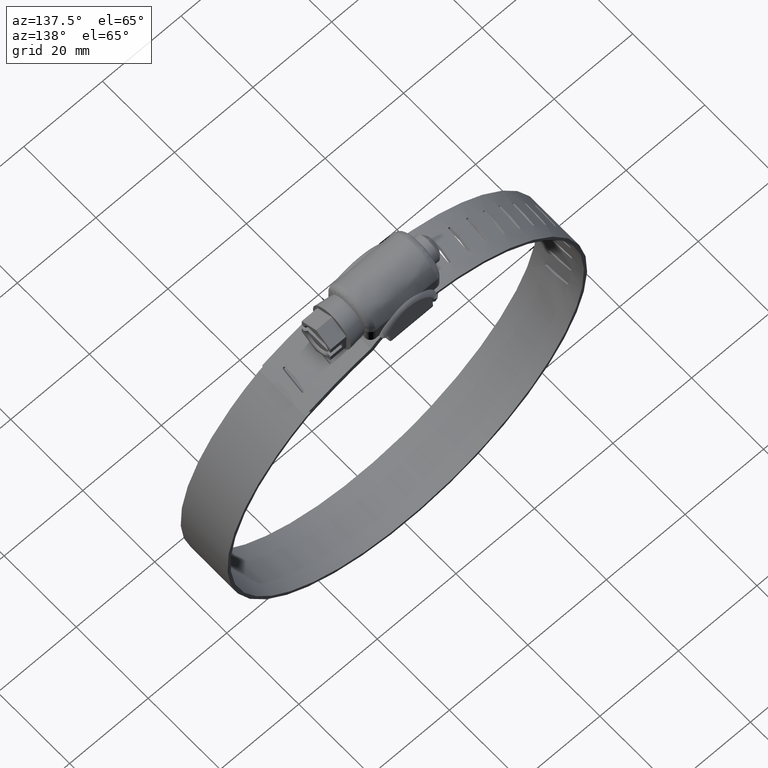
[diagram: clean part render]
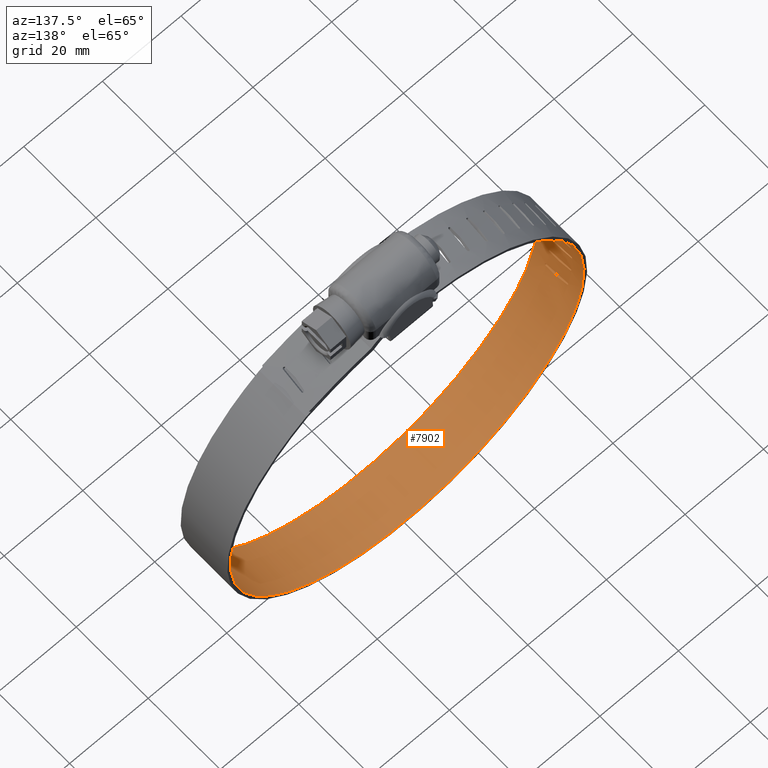
[diagram: same view with one face highlighted and labeled with its STEP entity id]
A machine part, auxiliary view. The second image highlights one B-rep face of the part: STEP entity #7902.
In plain terms, the highlighted face is a freeform B-spline surface patch.
Its self-contained STEP definition (entity closure, byte-faithful):
#3610=CARTESIAN_POINT('',(-43.913163850747402,-2.794078000000000,-43.162207472484347));
#3611=VERTEX_POINT('',#3610);
#3617=CARTESIAN_POINT('',(-43.846652629620941,-3.094077998481896,-43.454744682975942));
#3618=VERTEX_POINT('',#3617);
#3619=CARTESIAN_POINT('',(-43.846652629620941,-3.094077998481896,-43.454744682975942));
#3620=CARTESIAN_POINT('',(-43.862132848121561,-3.094451936949491,-43.387698030966483));
#3621=CARTESIAN_POINT('',(-43.888388810206422,-3.051786827629840,-43.273338744246587));
#3622=CARTESIAN_POINT('',(-43.909628474329139,-2.921709861521501,-43.179412144726342));
#3623=CARTESIAN_POINT('',(-43.913298572145308,-2.833332256497152,-43.162205607453281));
#3624=CARTESIAN_POINT('',(-43.913163850747402,-2.794078000000000,-43.162207472484347));
#3625=B_SPLINE_CURVE_WITH_KNOTS('',3,(#3619,#3620,#3621,#3622,#3623,#3624),.UNSPECIFIED.,.F.,.U.,(4,1,1,4),(0.000001314348055,0.206270979634273,0.353573168388018,0.471430469749860),.UNSPECIFIED.);
#3626=EDGE_CURVE('',#3618,#3611,#3625,.T.);
#3628=CARTESIAN_POINT('',(-43.778193218141148,-2.794078000000000,-43.746829511355301));
#3629=VERTEX_POINT('',#3628);
#3630=CARTESIAN_POINT('',(-43.778193218141148,-2.794078000000000,-43.746829511355301));
#3631=CARTESIAN_POINT('',(-43.778332377008567,-2.862887876163905,-43.747246386635958));
#3632=CARTESIAN_POINT('',(-43.788310811782772,-2.980222230823629,-43.705763721256083));
#3633=CARTESIAN_POINT('',(-43.817884624071688,-3.076518492598505,-43.579092404420670));
#3634=CARTESIAN_POINT('',(-43.837822427906900,-3.094109472589847,-43.492992954974177));
#3635=CARTESIAN_POINT('',(-43.846652629620941,-3.094077998481896,-43.454744682975942));
#3636=B_SPLINE_CURVE_WITH_KNOTS('',3,(#3630,#3631,#3632,#3633,#3634,#3635),.UNSPECIFIED.,.F.,.U.,(4,1,1,4),(0.000001356601701,0.206270363363258,0.353572086624109,0.471429037657806),.UNSPECIFIED.);
#3637=EDGE_CURVE('',#3629,#3618,#3636,.T.);
#3660=CARTESIAN_POINT('',(-43.778193218141148,-0.234600999999998,-43.746829511355301));
#3661=VERTEX_POINT('',#3660);
#3662=CARTESIAN_POINT('',(-43.778193218141148,-0.234600999999998,-43.746829511355301));
#3663=CARTESIAN_POINT('',(-43.778193218141148,-2.794078000000000,-43.746829511355301));
#3664=QUASI_UNIFORM_CURVE('',1,(#3662,#3663),.UNSPECIFIED.,.F.,.U.);
#3665=EDGE_CURVE('',#3661,#3629,#3664,.T.);
#3697=CARTESIAN_POINT('',(-43.784962550583863,0.060369000000009,-43.718333940182397));
#3698=VERTEX_POINT('',#3697);
#3699=CARTESIAN_POINT('',(-43.784962550583863,0.060369000000009,-43.718333940182397));
#3700=CARTESIAN_POINT('',(-43.778193218141148,-0.234600999999998,-43.746829511355301));
#3701=QUASI_UNIFORM_CURVE('',1,(#3699,#3700),.UNSPECIFIED.,.F.,.U.);
#3702=EDGE_CURVE('',#3698,#3661,#3701,.T.);
#3725=CARTESIAN_POINT('',(-43.913163850747146,2.905922000000000,-43.162207472484312));
#3726=VERTEX_POINT('',#3725);
#3727=CARTESIAN_POINT('',(-43.913163850747146,2.905922000000000,-43.162207472484312));
#3728=CARTESIAN_POINT('',(-43.784962550583863,0.060369000000009,-43.718333940182397));
#3729=QUASI_UNIFORM_CURVE('',1,(#3727,#3728),.UNSPECIFIED.,.F.,.U.);
#3730=EDGE_CURVE('',#3726,#3698,#3729,.T.);
#3781=CARTESIAN_POINT('',(-43.977728048658449,3.205921998316787,-42.869211628939340));
#3782=VERTEX_POINT('',#3781);
#3783=CARTESIAN_POINT('',(-43.977728048658449,3.205921998316787,-42.869211628939340));
#3784=CARTESIAN_POINT('',(-43.969407934595857,3.205956407443907,-42.907577446748391));
#3785=CARTESIAN_POINT('',(-43.950619743565959,3.188377008257230,-42.993936037470093));
#3786=CARTESIAN_POINT('',(-43.922731984763381,3.092074107573851,-43.121015702020443));
#3787=CARTESIAN_POINT('',(-43.913310894179908,2.974736342619181,-43.162611934093341));
#3788=CARTESIAN_POINT('',(-43.913163850747146,2.905922000000000,-43.162207472484312));
#3789=B_SPLINE_CURVE_WITH_KNOTS('',3,(#3783,#3784,#3785,#3786,#3787,#3788),.UNSPECIFIED.,.F.,.U.,(4,1,1,4),(0.000001597063804,0.117864821591540,0.265174233007980,0.471454408013486),.UNSPECIFIED.);
#3790=EDGE_CURVE('',#3782,#3726,#3789,.T.);
#3792=CARTESIAN_POINT('',(-44.040338656553601,2.905922000000000,-42.575785625181553));
#3793=VERTEX_POINT('',#3792);
#3794=CARTESIAN_POINT('',(-44.040338656553601,2.905922000000000,-42.575785625181553));
#3795=CARTESIAN_POINT('',(-44.040641393277333,2.974736437604950,-42.575472163482402));
#3796=CARTESIAN_POINT('',(-44.031982353759886,3.092076148707604,-42.617246117190113));
#3797=CARTESIAN_POINT('',(-44.004722387977928,3.188373146589193,-42.744460677910119));
#3798=CARTESIAN_POINT('',(-43.986048335858818,3.205953071928982,-42.830846041817331));
#3799=CARTESIAN_POINT('',(-43.977728048658449,3.205921998316787,-42.869211628939340));
#3800=B_SPLINE_CURVE_WITH_KNOTS('',3,(#3794,#3795,#3796,#3797,#3798,#3799),.UNSPECIFIED.,.F.,.U.,(4,1,1,4),(0.000001548696993,0.206283118091864,0.353593756498247,0.471457986370748),.UNSPECIFIED.);
#3801=EDGE_CURVE('',#3793,#3782,#3800,.T.);
#3822=CARTESIAN_POINT('',(-43.913163850747402,-2.794078000000000,-43.162207472484347));
#3823=CARTESIAN_POINT('',(-44.040338656553601,2.905922000000000,-42.575785625181553));
#3824=QUASI_UNIFORM_CURVE('',1,(#3822,#3823),.UNSPECIFIED.,.F.,.U.);
#3825=EDGE_CURVE('',#3611,#3793,#3824,.T.);
#3873=CARTESIAN_POINT('',(-44.743700886681147,-2.794078000000000,-38.127905858381048));
#3874=VERTEX_POINT('',#3873);
#3880=CARTESIAN_POINT('',(-44.710733361657667,-3.094077998481896,-38.426091881446531));
#3881=VERTEX_POINT('',#3880);
#3882=CARTESIAN_POINT('',(-44.710733361657667,-3.094077998481896,-38.426091881446531));
#3883=CARTESIAN_POINT('',(-44.715178145227547,-3.094106411324383,-38.387081353210192));
#3884=CARTESIAN_POINT('',(-44.725123753271511,-3.076535146870720,-38.299272469755849));
#3885=CARTESIAN_POINT('',(-44.739529223281671,-2.980204322983319,-38.170000734356663));
#3886=CARTESIAN_POINT('',(-44.743971137658107,-2.862895715804814,-38.127560295189802));
#3887=CARTESIAN_POINT('',(-44.743700886681147,-2.794078000000000,-38.127905858381048));
#3888=B_SPLINE_CURVE_WITH_KNOTS('',3,(#3882,#3883,#3884,#3885,#3886,#3887),.UNSPECIFIED.,.F.,.U.,(4,1,1,4),(0.000001314348915,0.117858608758497,0.265160793585763,0.471430469749691),.UNSPECIFIED.);
#3889=EDGE_CURVE('',#3881,#3874,#3888,.T.);
#3891=CARTESIAN_POINT('',(-44.675778958420487,-2.794078000000000,-38.724048971786800));
#3892=VERTEX_POINT('',#3891);
#3893=CARTESIAN_POINT('',(-44.675778958420487,-2.794078000000000,-38.724048971786800));
#3894=CARTESIAN_POINT('',(-44.675905242029103,-2.833332219388586,-38.724096470378761));
#3895=CARTESIAN_POINT('',(-44.678189207566277,-2.921709350047096,-38.706652705861707));
#3896=CARTESIAN_POINT('',(-44.689521098907832,-3.051786943476055,-38.611024223489842));
#3897=CARTESIAN_POINT('',(-44.702945074764123,-3.094450675289210,-38.494459771736992));
#3898=CARTESIAN_POINT('',(-44.710733361657667,-3.094077998481896,-38.426091881446531));
#3899=B_SPLINE_CURVE_WITH_KNOTS('',3,(#3893,#3894,#3895,#3896,#3897,#3898),.UNSPECIFIED.,.F.,.U.,(4,1,1,4),(0.000001356601688,0.117858277032309,0.265159983003379,0.471429037657928),.UNSPECIFIED.);
#3900=EDGE_CURVE('',#3892,#3881,#3899,.T.);
#3923=CARTESIAN_POINT('',(-44.675778958420352,-0.234600999999998,-38.724048971786800));
#3924=VERTEX_POINT('',#3923);
#3925=CARTESIAN_POINT('',(-44.675778958420352,-0.234600999999998,-38.724048971786800));
#3926=CARTESIAN_POINT('',(-44.675778958420487,-2.794078000000000,-38.724048971786800));
#3927=QUASI_UNIFORM_CURVE('',1,(#3925,#3926),.UNSPECIFIED.,.F.,.U.);
#3928=EDGE_CURVE('',#3924,#3892,#3927,.T.);
#3960=CARTESIAN_POINT('',(-44.679278986382300,0.060369000000009,-38.694970264070399));
#3961=VERTEX_POINT('',#3960);
#3962=CARTESIAN_POINT('',(-44.679278986382300,0.060369000000009,-38.694970264070399));
#3963=CARTESIAN_POINT('',(-44.675778958420352,-0.234600999999998,-38.724048971786800));
#3964=QUASI_UNIFORM_CURVE('',1,(#3962,#3963),.UNSPECIFIED.,.F.,.U.);
#3965=EDGE_CURVE('',#3961,#3924,#3964,.T.);
#3988=CARTESIAN_POINT('',(-44.743700886680813,2.905922000000000,-38.127905858380998));
#3989=VERTEX_POINT('',#3988);
#3990=CARTESIAN_POINT('',(-44.743700886680813,2.905922000000000,-38.127905858380998));
#3991=CARTESIAN_POINT('',(-44.679278986382300,0.060369000000009,-38.694970264070399));
#3992=QUASI_UNIFORM_CURVE('',1,(#3990,#3991),.UNSPECIFIED.,.F.,.U.);
#3993=EDGE_CURVE('',#3989,#3961,#3992,.T.);
#4044=CARTESIAN_POINT('',(-44.774681985500052,3.205921998316787,-37.829484559706572));
#4045=VERTEX_POINT('',#4044);
#4046=CARTESIAN_POINT('',(-44.774681985500052,3.205921998316787,-37.829484559706572));
#4047=CARTESIAN_POINT('',(-44.770758104731883,3.205953764461411,-37.868549349621901));
#4048=CARTESIAN_POINT('',(-44.761866363056413,3.188389881499307,-37.956484137031431));
#4049=CARTESIAN_POINT('',(-44.748545945578002,3.092061547263381,-38.085880667447313));
#4050=CARTESIAN_POINT('',(-44.743892203377982,2.974741129308964,-38.128296887330329));
#4051=CARTESIAN_POINT('',(-44.743700886680813,2.905922000000000,-38.127905858380998));
#4052=B_SPLINE_CURVE_WITH_KNOTS('',3,(#4046,#4047,#4048,#4049,#4050,#4051),.UNSPECIFIED.,.F.,.U.,(4,1,1,4),(0.000001597063655,0.117864821591447,0.265174233007973,0.471454408013520),.UNSPECIFIED.);
#4053=EDGE_CURVE('',#4045,#3989,#4052,.T.);
#4055=CARTESIAN_POINT('',(-44.803673356742898,2.905922000000000,-37.530857018619500));
#4056=VERTEX_POINT('',#4055);
#4057=CARTESIAN_POINT('',(-44.803673356742898,2.905922000000000,-37.530857018619500));
#4058=CARTESIAN_POINT('',(-44.803938910894807,2.974735218911787,-37.530508788202027));
#4059=CARTESIAN_POINT('',(-44.800063814673678,3.092079338869175,-37.573001202157222));
#4060=CARTESIAN_POINT('',(-44.787380844278132,3.188370252584881,-37.702477079069531));
#4061=CARTESIAN_POINT('',(-44.778605613261433,3.205954013301244,-37.790424413964729));
#4062=CARTESIAN_POINT('',(-44.774681985500052,3.205921998316787,-37.829484559706572));
#4063=B_SPLINE_CURVE_WITH_KNOTS('',3,(#4057,#4058,#4059,#4060,#4061,#4062),.UNSPECIFIED.,.F.,.U.,(4,1,1,4),(0.000001548696615,0.206283118091746,0.353593756498229,0.471457986370736),.UNSPECIFIED.);
#4064=EDGE_CURVE('',#4056,#4045,#4063,.T.);
#4085=CARTESIAN_POINT('',(-44.743700886681147,-2.794078000000000,-38.127905858381048));
#4086=CARTESIAN_POINT('',(-44.803673356742898,2.905922000000000,-37.530857018619500));
#4087=QUASI_UNIFORM_CURVE('',1,(#4085,#4086),.UNSPECIFIED.,.F.,.U.);
#4088=EDGE_CURVE('',#3874,#4056,#4087,.T.);
#4136=CARTESIAN_POINT('',(-9.062373892578028,-2.794078000000000,10.746091381797440));
#4137=VERTEX_POINT('',#4136);
#4143=CARTESIAN_POINT('',(-9.356027329099149,-3.094077998481896,10.684695768947760));
#4144=VERTEX_POINT('',#4143);
#4145=CARTESIAN_POINT('',(-9.356027329099149,-3.094077998481896,10.684695768947760));
#4146=CARTESIAN_POINT('',(-9.317630671017810,-3.094110315795300,10.692857340682920));
#4147=CARTESIAN_POINT('',(-9.231171673659093,-3.076519116723404,10.711174819865040));
#4148=CARTESIAN_POINT('',(-9.103869955379015,-2.980222138428978,10.737905470704620));
#4149=CARTESIAN_POINT('',(-9.062056068896718,-2.862888123606781,10.746393431152860));
#4150=CARTESIAN_POINT('',(-9.062373892578028,-2.794078000000000,10.746091381797440));
#4151=B_SPLINE_CURVE_WITH_KNOTS('',3,(#4145,#4146,#4147,#4148,#4149,#4150),.UNSPECIFIED.,.F.,.U.,(4,1,1,4),(0.000001314348508,0.117858608758288,0.265160793585664,0.471430469749780),.UNSPECIFIED.);
#4152=EDGE_CURVE('',#4144,#4137,#4151,.T.);
#4154=CARTESIAN_POINT('',(-9.649262453018119,-2.794078000000000,10.621344367306820));
#4155=VERTEX_POINT('',#4154);
#4156=CARTESIAN_POINT('',(-9.649262453018119,-2.794078000000000,10.621344367306820));
#4157=CARTESIAN_POINT('',(-9.649326152708637,-2.833325482178681,10.621464576633640));
#4158=CARTESIAN_POINT('',(-9.632184810313033,-2.921722118541717,10.625409322979451));
#4159=CARTESIAN_POINT('',(-9.538063677220078,-3.051773509575495,10.645858581702910));
#4160=CARTESIAN_POINT('',(-9.423339391871288,-3.094453666685111,10.670389428510550));
#4161=CARTESIAN_POINT('',(-9.356027329099149,-3.094077998481896,10.684695768947760));
#4162=B_SPLINE_CURVE_WITH_KNOTS('',3,(#4156,#4157,#4158,#4159,#4160,#4161),.UNSPECIFIED.,.F.,.U.,(4,1,1,4),(0.000001356602024,0.117858277032507,0.265159983003436,0.471429037657879),.UNSPECIFIED.);
#4163=EDGE_CURVE('',#4155,#4144,#4162,.T.);
#4186=CARTESIAN_POINT('',(-9.649262453018110,-0.234600999999998,10.621344367306881));
#4187=VERTEX_POINT('',#4186);
#4188=CARTESIAN_POINT('',(-9.649262453018110,-0.234600999999998,10.621344367306881));
#4189=CARTESIAN_POINT('',(-9.649262453018119,-2.794078000000000,10.621344367306820));
#4190=QUASI_UNIFORM_CURVE('',1,(#4188,#4189),.UNSPECIFIED.,.F.,.U.);
#4191=EDGE_CURVE('',#4187,#4155,#4190,.T.);
#4223=CARTESIAN_POINT('',(-9.620653080717640,0.060369000000009,10.627615352457701));
#4224=VERTEX_POINT('',#4223);
#4225=CARTESIAN_POINT('',(-9.620653080717640,0.060369000000009,10.627615352457701));
#4226=CARTESIAN_POINT('',(-9.649262453018110,-0.234600999999998,10.621344367306881));
#4227=QUASI_UNIFORM_CURVE('',1,(#4225,#4226),.UNSPECIFIED.,.F.,.U.);
#4228=EDGE_CURVE('',#4224,#4187,#4227,.T.);
#4251=CARTESIAN_POINT('',(-9.062373892577940,2.905922000000000,10.746091381797161));
#4252=VERTEX_POINT('',#4251);
#4253=CARTESIAN_POINT('',(-9.062373892577940,2.905922000000000,10.746091381797161));
#4254=CARTESIAN_POINT('',(-9.620653080717640,0.060369000000009,10.627615352457701));
#4255=QUASI_UNIFORM_CURVE('',1,(#4253,#4254),.UNSPECIFIED.,.F.,.U.);
#4256=EDGE_CURVE('',#4252,#4224,#4255,.T.);
#4307=CARTESIAN_POINT('',(-8.768295873095973,3.205921998316787,10.805532263722510));
#4308=VERTEX_POINT('',#4307);
#4309=CARTESIAN_POINT('',(-8.768295873095973,3.205921998316787,10.805532263722510));
#4310=CARTESIAN_POINT('',(-8.835798313443615,3.206303745394285,10.792123616243970));
#4311=CARTESIAN_POINT('',(-8.950843720766782,3.163637069184189,10.769123819746440));
#4312=CARTESIAN_POINT('',(-9.045246674641692,3.033565567175275,10.749927726865449));
#4313=CARTESIAN_POINT('',(-9.062424284286493,2.945182430580273,10.746214821628531));
#4314=CARTESIAN_POINT('',(-9.062373892577940,2.905922000000000,10.746091381797161));
#4315=B_SPLINE_CURVE_WITH_KNOTS('',3,(#4309,#4310,#4311,#4312,#4313,#4314),.UNSPECIFIED.,.F.,.U.,(4,1,1,4),(0.000001597064046,0.206281580539301,0.353591061276142,0.471454408013427),.UNSPECIFIED.);
#4316=EDGE_CURVE('',#4308,#4252,#4315,.T.);
#4318=CARTESIAN_POINT('',(-8.473821853763420,2.905922000000000,10.863012345841900));
#4319=VERTEX_POINT('',#4318);
#4320=CARTESIAN_POINT('',(-8.473821853763420,2.905922000000000,10.863012345841900));
#4321=CARTESIAN_POINT('',(-8.473815845027843,2.945178664386438,10.863146977308631));
#4322=CARTESIAN_POINT('',(-8.491129030754060,3.033560634724264,10.860007983116750));
#4323=CARTESIAN_POINT('',(-8.585674221421872,3.163644866662893,10.841667932563359));
#4324=CARTESIAN_POINT('',(-8.700802049541863,3.206296038639350,10.818941768011580));
#4325=CARTESIAN_POINT('',(-8.768295873095973,3.205921998316787,10.805532263722510));
#4326=B_SPLINE_CURVE_WITH_KNOTS('',3,(#4320,#4321,#4322,#4323,#4324,#4325),.UNSPECIFIED.,.F.,.U.,(4,1,1,4),(0.000001548696947,0.117865671319371,0.265176248948571,0.471457986370794),.UNSPECIFIED.);
#4327=EDGE_CURVE('',#4319,#4308,#4326,.T.);
#4348=CARTESIAN_POINT('',(-9.062373892578028,-2.794078000000000,10.746091381797440));
#4349=CARTESIAN_POINT('',(-8.473821853763420,2.905922000000000,10.863012345841900));
#4350=QUASI_UNIFORM_CURVE('',1,(#4348,#4349),.UNSPECIFIED.,.F.,.U.);
#4351=EDGE_CURVE('',#4137,#4319,#4350,.T.);
#4399=CARTESIAN_POINT('',(-13.993895133485220,-2.794078000000000,9.436861547008421));
#4400=VERTEX_POINT('',#4399);
#4406=CARTESIAN_POINT('',(-14.278710742649849,-3.094077998481896,9.342618081270485));
#4407=VERTEX_POINT('',#4406);
#4408=CARTESIAN_POINT('',(-14.278710742649849,-3.094077998481896,9.342618081270485));
#4409=CARTESIAN_POINT('',(-14.213456473317640,-3.094451936949491,9.364453168731782));
#4410=CARTESIAN_POINT('',(-14.102140196512680,-3.051786827629767,9.401549105468666));
#4411=CARTESIAN_POINT('',(-14.010681748016131,-2.921709861521539,9.431693452004168));
#4412=CARTESIAN_POINT('',(-13.993906189513980,-2.833332256497158,9.436995826930856));
#4413=CARTESIAN_POINT('',(-13.993895133485220,-2.794078000000000,9.436861547008421));
#4414=B_SPLINE_CURVE_WITH_KNOTS('',3,(#4408,#4409,#4410,#4411,#4412,#4413),.UNSPECIFIED.,.F.,.U.,(4,1,1,4),(0.000001314348579,0.206270979634540,0.353573168388219,0.471430469750043),.UNSPECIFIED.);
#4415=EDGE_CURVE('',#4407,#4400,#4414,.T.);
#4417=CARTESIAN_POINT('',(-14.562889326608740,-2.794078000000000,9.246478753165331));
#4418=VERTEX_POINT('',#4417);
#4419=CARTESIAN_POINT('',(-14.562889326608740,-2.794078000000000,9.246478753165331));
#4420=CARTESIAN_POINT('',(-14.563319701716249,-2.862895213321317,9.246576645061028));
#4421=CARTESIAN_POINT('',(-14.522974049197121,-2.980204089917152,9.260488453791304));
#4422=CARTESIAN_POINT('',(-14.399732912597139,-3.076535433594664,9.302062967246394));
#4423=CARTESIAN_POINT('',(-14.315941146823031,-3.094105560891570,9.330161059154158));
#4424=CARTESIAN_POINT('',(-14.278710742649849,-3.094077998481896,9.342618081270485));
#4425=B_SPLINE_CURVE_WITH_KNOTS('',3,(#4419,#4420,#4421,#4422,#4423,#4424),.UNSPECIFIED.,.F.,.U.,(4,1,1,4),(0.000001356601964,0.206270363363338,0.353572086624080,0.471429037657659),.UNSPECIFIED.);
#4426=EDGE_CURVE('',#4418,#4407,#4425,.T.);
#4449=CARTESIAN_POINT('',(-14.562889326608699,-0.234600999999998,9.246478753165309));
#4450=VERTEX_POINT('',#4449);
#4451=CARTESIAN_POINT('',(-14.562889326608699,-0.234600999999998,9.246478753165309));
#4452=CARTESIAN_POINT('',(-14.562889326608740,-2.794078000000000,9.246478753165331));
#4453=QUASI_UNIFORM_CURVE('',1,(#4451,#4452),.UNSPECIFIED.,.F.,.U.);
#4454=EDGE_CURVE('',#4450,#4418,#4453,.T.);
#4486=CARTESIAN_POINT('',(-14.535173755155039,0.060369000000009,9.255948100406929));
#4487=VERTEX_POINT('',#4486);
#4488=CARTESIAN_POINT('',(-14.535173755155039,0.060369000000009,9.255948100406929));
#4489=CARTESIAN_POINT('',(-14.562889326608699,-0.234600999999998,9.246478753165309));
#4490=QUASI_UNIFORM_CURVE('',1,(#4488,#4489),.UNSPECIFIED.,.F.,.U.);
#4491=EDGE_CURVE('',#4487,#4450,#4490,.T.);
#4514=CARTESIAN_POINT('',(-13.993895133485260,2.905922000000000,9.436861547008512));
#4515=VERTEX_POINT('',#4514);
#4516=CARTESIAN_POINT('',(-13.993895133485260,2.905922000000000,9.436861547008512));
#4517=CARTESIAN_POINT('',(-14.535173755155039,0.060369000000009,9.255948100406929));
#4518=QUASI_UNIFORM_CURVE('',1,(#4516,#4517),.UNSPECIFIED.,.F.,.U.);
#4519=EDGE_CURVE('',#4515,#4487,#4518,.T.);
#4571=CARTESIAN_POINT('',(-13.708436388818480,3.205921998316786,9.529210911269283));
#4572=VERTEX_POINT('',#4571);
#4573=CARTESIAN_POINT('',(-13.708436388818480,3.205921998316786,9.529210911269283));
#4574=CARTESIAN_POINT('',(-13.745835445647190,3.205953192668924,9.517249549774919));
#4575=CARTESIAN_POINT('',(-13.829992200636180,3.188390121838776,9.490271924982185));
#4576=CARTESIAN_POINT('',(-13.953798552314240,3.092061137023993,9.450337324777570));
#4577=CARTESIAN_POINT('',(-13.994316390656190,2.974741302082772,9.436967705151886));
#4578=CARTESIAN_POINT('',(-13.993895133485260,2.905922000000000,9.436861547008512));
#4579=B_SPLINE_CURVE_WITH_KNOTS('',3,(#4573,#4574,#4575,#4576,#4577,#4578),.UNSPECIFIED.,.F.,.U.,(4,1,1,4),(0.000001597064172,0.117864821591656,0.265174233007841,0.471454408013043),.UNSPECIFIED.);
#4580=EDGE_CURVE('',#4572,#4515,#4579,.T.);
#4582=CARTESIAN_POINT('',(-13.422362221004560,2.905922000000000,9.619656908484879));
#4583=VERTEX_POINT('',#4582);
#4584=CARTESIAN_POINT('',(-13.422362221004560,2.905922000000000,9.619656908484879));
#4585=CARTESIAN_POINT('',(-13.422309497175821,2.955030502510235,9.619845667312431));
#4586=CARTESIAN_POINT('',(-13.441281575347929,3.033469620017342,9.614052324372617));
#4587=CARTESIAN_POINT('',(-13.508981065058220,3.129149363748124,9.592734671769927));
#4588=CARTESIAN_POINT('',(-13.596192697367480,3.190318524912080,9.565055584279270));
#4589=CARTESIAN_POINT('',(-13.671036878800731,3.205953320206748,9.541172636304470));
#4590=CARTESIAN_POINT('',(-13.708436388818480,3.205921998316786,9.529210911269283));
#4591=B_SPLINE_CURVE_WITH_KNOTS('',3,(#4584,#4585,#4586,#4587,#4588,#4589,#4590),.UNSPECIFIED.,.F.,.U.,(4,1,1,1,4),(0.000001548696893,0.147344623574218,0.235729653878407,0.353593756498595,0.471457986371192),.UNSPECIFIED.);
#4592=EDGE_CURVE('',#4583,#4572,#4591,.T.);
#4613=CARTESIAN_POINT('',(-13.993895133485220,-2.794078000000000,9.436861547008421));
#4614=CARTESIAN_POINT('',(-13.422362221004560,2.905922000000000,9.619656908484879));
#4615=QUASI_UNIFORM_CURVE('',1,(#4613,#4614),.UNSPECIFIED.,.F.,.U.);
#4616=EDGE_CURVE('',#4400,#4583,#4615,.T.);
#4664=CARTESIAN_POINT('',(-18.745506819262950,-2.794078000000000,7.577783577314199));
#4665=VERTEX_POINT('',#4664);
#4671=CARTESIAN_POINT('',(-19.017822929387791,-3.094077998481896,7.451903879887226));
#4672=VERTEX_POINT('',#4671);
#4673=CARTESIAN_POINT('',(-19.017822929387791,-3.094077998481896,7.451903879887226));
#4674=CARTESIAN_POINT('',(-18.982246639310631,-3.094110605574858,7.468493496306858));
#4675=CARTESIAN_POINT('',(-18.902122901072470,-3.076518213581533,7.505791104770194));
#4676=CARTESIAN_POINT('',(-18.784099761933099,-2.980224223847406,7.560472032234645));
#4677=CARTESIAN_POINT('',(-18.745264178658768,-2.862886985029958,7.578149799643043));
#4678=CARTESIAN_POINT('',(-18.745506819262950,-2.794078000000000,7.577783577314199));
#4679=B_SPLINE_CURVE_WITH_KNOTS('',3,(#4673,#4674,#4675,#4676,#4677,#4678),.UNSPECIFIED.,.F.,.U.,(4,1,1,4),(0.000001314348634,0.117858608758358,0.265160793585695,0.471430469749724),.UNSPECIFIED.);
#4680=EDGE_CURVE('',#4672,#4665,#4679,.T.);
#4682=CARTESIAN_POINT('',(-19.289291491484601,-2.794078000000000,7.324212620269830));
#4683=VERTEX_POINT('',#4682);
#4684=CARTESIAN_POINT('',(-19.289291491484601,-2.794078000000000,7.324212620269830));
#4685=CARTESIAN_POINT('',(-19.289380036110021,-2.833325832075057,7.324315683453202));
#4686=CARTESIAN_POINT('',(-19.273567221104180,-2.921721466286890,7.332014436397362));
#4687=CARTESIAN_POINT('',(-19.186456451742171,-3.051773281427843,7.373113181555771));
#4688=CARTESIAN_POINT('',(-19.080191530931419,-3.094454512585282,7.422822308130443));
#4689=CARTESIAN_POINT('',(-19.017822929387791,-3.094077998481896,7.451903879887226));
#4690=B_SPLINE_CURVE_WITH_KNOTS('',3,(#4684,#4685,#4686,#4687,#4688,#4689),.UNSPECIFIED.,.F.,.U.,(4,1,1,4),(0.000001356602067,0.117858277032494,0.265159983003393,0.471429037657797),.UNSPECIFIED.);
#4691=EDGE_CURVE('',#4683,#4672,#4690,.T.);
#4714=CARTESIAN_POINT('',(-19.289291491484750,-0.234600999999998,7.324212620270171));
#4715=VERTEX_POINT('',#4714);
#4716=CARTESIAN_POINT('',(-19.289291491484750,-0.234600999999998,7.324212620270171));
#4717=CARTESIAN_POINT('',(-19.289291491484601,-2.794078000000000,7.324212620269830));
#4718=QUASI_UNIFORM_CURVE('',1,(#4716,#4717),.UNSPECIFIED.,.F.,.U.);
#4719=EDGE_CURVE('',#4715,#4683,#4718,.T.);
#4751=CARTESIAN_POINT('',(-19.262826040264301,0.060369000000009,7.336758588940691));
#4752=VERTEX_POINT('',#4751);
#4753=CARTESIAN_POINT('',(-19.262826040264301,0.060369000000009,7.336758588940691));
#4754=CARTESIAN_POINT('',(-19.289291491484750,-0.234600999999998,7.324212620270171));
#4755=QUASI_UNIFORM_CURVE('',1,(#4753,#4754),.UNSPECIFIED.,.F.,.U.);
#4756=EDGE_CURVE('',#4752,#4715,#4755,.T.);
#4779=CARTESIAN_POINT('',(-18.745506819262950,2.905922000000000,7.577783577314530));
#4780=VERTEX_POINT('',#4779);
#4781=CARTESIAN_POINT('',(-18.745506819262950,2.905922000000000,7.577783577314530));
#4782=CARTESIAN_POINT('',(-19.262826040264301,0.060369000000009,7.336758588940691));
#4783=QUASI_UNIFORM_CURVE('',1,(#4781,#4782),.UNSPECIFIED.,.F.,.U.);
#4784=EDGE_CURVE('',#4780,#4752,#4783,.T.);
#4835=CARTESIAN_POINT('',(-18.472337289428289,3.205921998316786,7.701854153828370));
#4836=VERTEX_POINT('',#4835);
#4837=CARTESIAN_POINT('',(-18.472337289428289,3.205921998316786,7.701854153828370));
#4838=CARTESIAN_POINT('',(-18.535086669436041,3.206298527048027,7.673607415571519));
#4839=CARTESIAN_POINT('',(-18.642030353006881,3.163650729040811,7.625308262145424));
#4840=CARTESIAN_POINT('',(-18.729670378300181,3.033557047472649,7.585379385702687));
#4841=CARTESIAN_POINT('',(-18.745585628564019,2.945178893241144,7.577891630908890));
#4842=CARTESIAN_POINT('',(-18.745506819262950,2.905922000000000,7.577783577314530));
#4843=B_SPLINE_CURVE_WITH_KNOTS('',3,(#4837,#4838,#4839,#4840,#4841,#4842),.UNSPECIFIED.,.F.,.U.,(4,1,1,4),(0.000001597063869,0.206281580539274,0.353591061276176,0.471454408013496),.UNSPECIFIED.);
#4844=EDGE_CURVE('',#4836,#4780,#4843,.T.);
#4846=CARTESIAN_POINT('',(-18.198340825210249,2.905922000000000,7.824103266292510));
#4847=VERTEX_POINT('',#4846);
#4848=CARTESIAN_POINT('',(-18.198340825210249,2.905922000000000,7.824103266292510));
#4849=CARTESIAN_POINT('',(-18.198365214884792,2.945178607468188,7.824235817121560));
#4850=CARTESIAN_POINT('',(-18.214528784800649,3.033560910724647,7.817282548907758));
#4851=CARTESIAN_POINT('',(-18.302524977750640,3.163644830407713,7.778144599834358));
#4852=CARTESIAN_POINT('',(-18.409589779553649,3.206296018947913,7.730102793942863));
#4853=CARTESIAN_POINT('',(-18.472337289428289,3.205921998316786,7.701854153828370));
#4854=B_SPLINE_CURVE_WITH_KNOTS('',3,(#4848,#4849,#4850,#4851,#4852,#4853),.UNSPECIFIED.,.F.,.U.,(4,1,1,4),(0.000001548696974,0.117865671319388,0.265176248948553,0.471457986370744),.UNSPECIFIED.);
#4855=EDGE_CURVE('',#4847,#4836,#4854,.T.);
#4876=CARTESIAN_POINT('',(-18.745506819262950,-2.794078000000000,7.577783577314199));
#4877=CARTESIAN_POINT('',(-18.198340825210249,2.905922000000000,7.824103266292510));
#4878=QUASI_UNIFORM_CURVE('',1,(#4876,#4877),.UNSPECIFIED.,.F.,.U.);
#4879=EDGE_CURVE('',#4665,#4847,#4878,.T.);
#4927=CARTESIAN_POINT('',(-23.256120858541149,-2.794078000000000,5.192758315710720));
#4928=VERTEX_POINT('',#4927);
#4934=CARTESIAN_POINT('',(-23.512436495111700,-3.094077998481896,5.036860732319192));
#4935=VERTEX_POINT('',#4934);
#4936=CARTESIAN_POINT('',(-23.512436495111700,-3.094077998481896,5.036860732319192));
#4937=CARTESIAN_POINT('',(-23.478958730664559,-3.094109783162003,5.057376056997597));
#4938=CARTESIAN_POINT('',(-23.411952173165002,-3.078467276844374,5.098376574315542));
#4939=CARTESIAN_POINT('',(-23.326718799272570,-3.011734635075418,5.150346763796608));
#4940=CARTESIAN_POINT('',(-23.269643586982660,-2.911882583962222,5.184932130384784));
#4941=CARTESIAN_POINT('',(-23.256156718409660,-2.833336328939100,5.192889819956104));
#4942=CARTESIAN_POINT('',(-23.256120858541149,-2.794078000000000,5.192758315710720));
#4943=B_SPLINE_CURVE_WITH_KNOTS('',3,(#4936,#4937,#4938,#4939,#4940,#4941,#4942),.UNSPECIFIED.,.F.,.U.,(4,1,1,1,4),(0.000001314348569,0.117858608758309,0.235715884692423,0.353573168388043,0.471430469749794),.UNSPECIFIED.);
#4944=EDGE_CURVE('',#4935,#4928,#4943,.T.);
#4946=CARTESIAN_POINT('',(-23.767704957153398,-2.794078000000000,4.879259176881329));
#4947=VERTEX_POINT('',#4946);
#4948=CARTESIAN_POINT('',(-23.767704957153398,-2.794078000000000,4.879259176881329));
#4949=CARTESIAN_POINT('',(-23.768144462317188,-2.862887842145267,4.879258857682024));
#4950=CARTESIAN_POINT('',(-23.731971687538731,-2.980222234029158,4.901884277709748));
#4951=CARTESIAN_POINT('',(-23.621229923596118,-3.076518709029456,4.970123386041396));
#4952=CARTESIAN_POINT('',(-23.545906420584370,-3.094109427903141,5.016350458461734));
#4953=CARTESIAN_POINT('',(-23.512436495111700,-3.094077998481896,5.036860732319192));
#4954=B_SPLINE_CURVE_WITH_KNOTS('',3,(#4948,#4949,#4950,#4951,#4952,#4953),.UNSPECIFIED.,.F.,.U.,(4,1,1,4),(0.000001356601995,0.206270363363361,0.353572086624160,0.471429037657790),.UNSPECIFIED.);
#4955=EDGE_CURVE('',#4947,#4935,#4954,.T.);
#4978=CARTESIAN_POINT('',(-23.767704957153349,-0.234600999999998,4.879259176881260));
#4979=VERTEX_POINT('',#4978);
#4980=CARTESIAN_POINT('',(-23.767704957153349,-0.234600999999998,4.879259176881260));
#4981=CARTESIAN_POINT('',(-23.767704957153398,-2.794078000000000,4.879259176881329));
#4982=QUASI_UNIFORM_CURVE('',1,(#4980,#4981),.UNSPECIFIED.,.F.,.U.);
#4983=EDGE_CURVE('',#4979,#4947,#4982,.T.);
#5015=CARTESIAN_POINT('',(-23.742829873646400,0.060369000000009,4.894720472386769));
#5016=VERTEX_POINT('',#5015);
#5017=CARTESIAN_POINT('',(-23.742829873646400,0.060369000000009,4.894720472386769));
#5018=CARTESIAN_POINT('',(-23.767704957153349,-0.234600999999998,4.879259176881260));
#5019=QUASI_UNIFORM_CURVE('',1,(#5017,#5018),.UNSPECIFIED.,.F.,.U.);
#5020=EDGE_CURVE('',#5016,#4979,#5019,.T.);
#5043=CARTESIAN_POINT('',(-23.256120858541049,2.905922000000000,5.192758315710760));
#5044=VERTEX_POINT('',#5043);
#5045=CARTESIAN_POINT('',(-23.256120858541049,2.905922000000000,5.192758315710760));
#5046=CARTESIAN_POINT('',(-23.742829873646400,0.060369000000009,4.894720472386769));
#5047=QUASI_UNIFORM_CURVE('',1,(#5045,#5046),.UNSPECIFIED.,.F.,.U.);
#5048=EDGE_CURVE('',#5044,#5016,#5047,.T.);
#5099=CARTESIAN_POINT('',(-22.998752489865272,3.205921998316786,5.346955017332990));
#5100=VERTEX_POINT('',#5099);
#5101=CARTESIAN_POINT('',(-22.998752489865272,3.205921998316786,5.346955017332990));
#5102=CARTESIAN_POINT('',(-23.032489021372879,3.205962029994371,5.326895191636120));
#5103=CARTESIAN_POINT('',(-23.108444054704009,3.188380879641642,5.281663595981624));
#5104=CARTESIAN_POINT('',(-23.220076639206741,3.092067915916749,5.214912489347991));
#5105=CARTESIAN_POINT('',(-23.256556838774511,2.974739247480356,5.192766007973011));
#5106=CARTESIAN_POINT('',(-23.256120858541049,2.905922000000000,5.192758315710760));
#5107=B_SPLINE_CURVE_WITH_KNOTS('',3,(#5101,#5102,#5103,#5104,#5105,#5106),.UNSPECIFIED.,.F.,.U.,(4,1,1,4),(0.000001597064102,0.117864821591606,0.265174233007765,0.471454408012923),.UNSPECIFIED.);
#5108=EDGE_CURVE('',#5100,#5044,#5107,.T.);
#5110=CARTESIAN_POINT('',(-22.740356306873799,2.905922000000000,5.499435575169830));
#5111=VERTEX_POINT('',#5110);
#5112=CARTESIAN_POINT('',(-22.740356306873799,2.905922000000000,5.499435575169830));
#5113=CARTESIAN_POINT('',(-22.740396639005841,2.945179692711842,5.499563866628312));
#5114=CARTESIAN_POINT('',(-22.755664598309870,3.033557034649235,5.490828228966917));
#5115=CARTESIAN_POINT('',(-22.838672839194619,3.163651367433949,5.441975552208087));
#5116=CARTESIAN_POINT('',(-22.939603979095740,3.206292310750320,5.382126577377613));
#5117=CARTESIAN_POINT('',(-22.998752489865272,3.205921998316786,5.346955017332990));
#5118=B_SPLINE_CURVE_WITH_KNOTS('',3,(#5112,#5113,#5114,#5115,#5116,#5117),.UNSPECIFIED.,.F.,.U.,(4,1,1,4),(0.000001548696783,0.117865671319361,0.265176248948761,0.471457986371208),.UNSPECIFIED.);
#5119=EDGE_CURVE('',#5111,#5100,#5118,.T.);
#5140=CARTESIAN_POINT('',(-23.256120858541149,-2.794078000000000,5.192758315710720));
#5141=CARTESIAN_POINT('',(-22.740356306873799,2.905922000000000,5.499435575169830));
#5142=QUASI_UNIFORM_CURVE('',1,(#5140,#5141),.UNSPECIFIED.,.F.,.U.);
#5143=EDGE_CURVE('',#4928,#5111,#5142,.T.);
#5191=CARTESIAN_POINT('',(-27.467747495256351,-2.794078000000000,2.312448335390850));
#5192=VERTEX_POINT('',#5191);
#5198=CARTESIAN_POINT('',(-27.704767390463768,-3.094077998481896,2.128537130366642));
#5199=VERTEX_POINT('',#5198);
#5200=CARTESIAN_POINT('',(-27.704767390463768,-3.094077998481896,2.128537130366642));
#5201=CARTESIAN_POINT('',(-27.650538744371438,-3.094453860468535,2.170906781999818));
#5202=CARTESIAN_POINT('',(-27.558010869549939,-3.051778641016404,2.243016959832001));
#5203=CARTESIAN_POINT('',(-27.481832766192419,-2.921714136180747,2.301983630198666));
#5204=CARTESIAN_POINT('',(-27.467805807269411,-2.833337089617987,2.312568847206781));
#5205=CARTESIAN_POINT('',(-27.467747495256351,-2.794078000000000,2.312448335390850));
#5206=B_SPLINE_CURVE_WITH_KNOTS('',3,(#5200,#5201,#5202,#5203,#5204,#5205),.UNSPECIFIED.,.F.,.U.,(4,1,1,4),(0.000001314348546,0.206270979634325,0.353573168387830,0.471430469749528),.UNSPECIFIED.);
#5207=EDGE_CURVE('',#5199,#5192,#5206,.T.);
#5209=CARTESIAN_POINT('',(-27.940553947420302,-2.794078000000000,1.943051450195630));
#5210=VERTEX_POINT('',#5209);
#5211=CARTESIAN_POINT('',(-27.940553947420302,-2.794078000000000,1.943051450195630));
#5212=CARTESIAN_POINT('',(-27.940991605167579,-2.862895350288589,1.943000619249954));
#5213=CARTESIAN_POINT('',(-27.907604910654321,-2.980204747944512,1.969581395130073));
#5214=CARTESIAN_POINT('',(-27.805310902034389,-3.076534020283576,2.049909716956934));
#5215=CARTESIAN_POINT('',(-27.735703800265199,-3.094106152429794,2.104367077124354));
#5216=CARTESIAN_POINT('',(-27.704767390463768,-3.094077998481896,2.128537130366642));
#5217=B_SPLINE_CURVE_WITH_KNOTS('',3,(#5211,#5212,#5213,#5214,#5215,#5216),.UNSPECIFIED.,.F.,.U.,(4,1,1,4),(0.000001356601892,0.206270363363503,0.353572086624427,0.471429037658126),.UNSPECIFIED.);
#5218=EDGE_CURVE('',#5210,#5199,#5217,.T.);
#5241=CARTESIAN_POINT('',(-27.940553947420451,-0.234600999999998,1.943051450195690));
#5242=VERTEX_POINT('',#5241);
#5243=CARTESIAN_POINT('',(-27.940553947420451,-0.234600999999998,1.943051450195690));
#5244=CARTESIAN_POINT('',(-27.940553947420302,-2.794078000000000,1.943051450195630));
#5245=QUASI_UNIFORM_CURVE('',1,(#5243,#5244),.UNSPECIFIED.,.F.,.U.);
#5246=EDGE_CURVE('',#5242,#5210,#5245,.T.);
#5278=CARTESIAN_POINT('',(-27.917589032880301,0.060369000000009,1.961229297657845));
#5279=VERTEX_POINT('',#5278);
#5280=CARTESIAN_POINT('',(-27.917589032880301,0.060369000000009,1.961229297657845));
#5281=CARTESIAN_POINT('',(-27.940553947420451,-0.234600999999998,1.943051450195690));
#5282=QUASI_UNIFORM_CURVE('',1,(#5280,#5281),.UNSPECIFIED.,.F.,.U.);
#5283=EDGE_CURVE('',#5279,#5242,#5282,.T.);
#5306=CARTESIAN_POINT('',(-27.467747495256798,2.905922000000000,2.312448335391350));
#5307=VERTEX_POINT('',#5306);
#5308=CARTESIAN_POINT('',(-27.467747495256798,2.905922000000000,2.312448335391350));
#5309=CARTESIAN_POINT('',(-27.917589032880301,0.060369000000009,1.961229297657845));
#5310=QUASI_UNIFORM_CURVE('',1,(#5308,#5309),.UNSPECIFIED.,.F.,.U.);
#5311=EDGE_CURVE('',#5307,#5279,#5310,.T.);
#5362=CARTESIAN_POINT('',(-27.229489089774042,3.205921998316786,2.494788764817775));
#5363=VERTEX_POINT('',#5362);
#5364=CARTESIAN_POINT('',(-27.229489089774042,3.205921998316786,2.494788764817775));
#5365=CARTESIAN_POINT('',(-27.260749952038910,3.205953762431608,2.471029624376138));
#5366=CARTESIAN_POINT('',(-27.331074931671271,3.188388992338569,2.417506795124897));
#5367=CARTESIAN_POINT('',(-27.434449338948721,3.092061863230667,2.338535498847629));
#5368=CARTESIAN_POINT('',(-27.468179353632308,2.974741347308100,2.312408297185788));
#5369=CARTESIAN_POINT('',(-27.467747495256798,2.905922000000000,2.312448335391350));
#5370=B_SPLINE_CURVE_WITH_KNOTS('',3,(#5364,#5365,#5366,#5367,#5368,#5369),.UNSPECIFIED.,.F.,.U.,(4,1,1,4),(0.000001597064072,0.117864821591727,0.265174233008102,0.471454408013532),.UNSPECIFIED.);
#5371=EDGE_CURVE('',#5363,#5307,#5370,.T.);
#5373=CARTESIAN_POINT('',(-26.990015203924450,2.905922000000000,2.675540433961745));
#5374=VERTEX_POINT('',#5373);
#5375=CARTESIAN_POINT('',(-26.990015203924450,2.905922000000000,2.675540433961745));
#5376=CARTESIAN_POINT('',(-26.989856903084181,2.974742838964016,2.675948942224884));
#5377=CARTESIAN_POINT('',(-27.024067294724919,3.092061411319775,2.650439214489736));
#5378=CARTESIAN_POINT('',(-27.127831750848468,3.188386194041340,2.571978219363575));
#5379=CARTESIAN_POINT('',(-27.198228271253420,3.205950132494889,2.518548122565528));
#5380=CARTESIAN_POINT('',(-27.229489089774042,3.205921998316786,2.494788764817775));
#5381=B_SPLINE_CURVE_WITH_KNOTS('',3,(#5375,#5376,#5377,#5378,#5379,#5380),.UNSPECIFIED.,.F.,.U.,(4,1,1,4),(0.000001548696829,0.206283118091824,0.353593756498229,0.471457986370725),.UNSPECIFIED.);
#5382=EDGE_CURVE('',#5374,#5363,#5381,.T.);
#5403=CARTESIAN_POINT('',(-27.467747495256351,-2.794078000000000,2.312448335390850));
#5404=CARTESIAN_POINT('',(-26.990015203924450,2.905922000000000,2.675540433961745));
#5405=QUASI_UNIFORM_CURVE('',1,(#5403,#5404),.UNSPECIFIED.,.F.,.U.);
#5406=EDGE_CURVE('',#5192,#5374,#5405,.T.);
#5454=CARTESIAN_POINT('',(-31.326240841694851,-2.794078000000000,-1.026116267145848));
#5455=VERTEX_POINT('',#5454);
#5461=CARTESIAN_POINT('',(-31.540917799351440,-3.094077998481897,-1.235676678266100));
#5462=VERTEX_POINT('',#5461);
#5463=CARTESIAN_POINT('',(-31.540917799351440,-3.094077998481897,-1.235676678266100));
#5464=CARTESIAN_POINT('',(-31.491840477468742,-3.094451393811870,-1.187446783355372));
#5465=CARTESIAN_POINT('',(-31.408050284727530,-3.051788452456498,-1.105305775240135));
#5466=CARTESIAN_POINT('',(-31.339062421546561,-2.921707199141824,-1.038119524591937));
#5467=CARTESIAN_POINT('',(-31.326309739666812,-2.833333072943097,-1.026000514746373));
#5468=CARTESIAN_POINT('',(-31.326240841694851,-2.794078000000000,-1.026116267145848));
#5469=B_SPLINE_CURVE_WITH_KNOTS('',3,(#5463,#5464,#5465,#5466,#5467,#5468),.UNSPECIFIED.,.F.,.U.,(4,1,1,4),(0.000001314348611,0.206270979634353,0.353573168387835,0.471430469749527),.UNSPECIFIED.);
#5470=EDGE_CURVE('',#5462,#5455,#5469,.T.);
#5472=CARTESIAN_POINT('',(-31.754191111187250,-2.794078000000000,-1.446661825725690));
#5473=VERTEX_POINT('',#5472);
#5474=CARTESIAN_POINT('',(-31.754191111187250,-2.794078000000000,-1.446661825725690));
#5475=CARTESIAN_POINT('',(-31.754619266103379,-2.862887876163992,-1.446760990021882));
#5476=CARTESIAN_POINT('',(-31.724463197323530,-2.980222230823614,-1.416578342634143));
#5477=CARTESIAN_POINT('',(-31.631910419391868,-3.076518492598564,-1.325176941226481));
#5478=CARTESIAN_POINT('',(-31.568916044552680,-3.094109472589956,-1.263190330128732));
#5479=CARTESIAN_POINT('',(-31.540917799351440,-3.094077998481897,-1.235676678266100));
#5480=B_SPLINE_CURVE_WITH_KNOTS('',3,(#5474,#5475,#5476,#5477,#5478,#5479),.UNSPECIFIED.,.F.,.U.,(4,1,1,4),(0.000001356602098,0.206270363363620,0.353572086624477,0.471429037658178),.UNSPECIFIED.);
#5481=EDGE_CURVE('',#5473,#5462,#5480,.T.);
#5504=CARTESIAN_POINT('',(-31.754191111187151,-0.234600999999998,-1.446661825725726));
#5505=VERTEX_POINT('',#5504);
#5506=CARTESIAN_POINT('',(-31.754191111187151,-0.234600999999998,-1.446661825725726));
#5507=CARTESIAN_POINT('',(-31.754191111187250,-2.794078000000000,-1.446661825725690));
#5508=QUASI_UNIFORM_CURVE('',1,(#5506,#5507),.UNSPECIFIED.,.F.,.U.);
#5509=EDGE_CURVE('',#5505,#5473,#5508,.T.);
#5541=CARTESIAN_POINT('',(-31.733431609184450,0.060369000000009,-1.426001125960494));
#5542=VERTEX_POINT('',#5541);
#5543=CARTESIAN_POINT('',(-31.733431609184450,0.060369000000009,-1.426001125960494));
#5544=CARTESIAN_POINT('',(-31.754191111187151,-0.234600999999998,-1.446661825725726));
#5545=QUASI_UNIFORM_CURVE('',1,(#5543,#5544),.UNSPECIFIED.,.F.,.U.);
#5546=EDGE_CURVE('',#5542,#5505,#5545,.T.);
#5569=CARTESIAN_POINT('',(-31.326240841694649,2.905922000000000,-1.026116267145992));
#5570=VERTEX_POINT('',#5569);
#5571=CARTESIAN_POINT('',(-31.326240841694649,2.905922000000000,-1.026116267145992));
#5572=CARTESIAN_POINT('',(-31.733431609184450,0.060369000000009,-1.426001125960494));
#5573=QUASI_UNIFORM_CURVE('',1,(#5571,#5572),.UNSPECIFIED.,.F.,.U.);
#5574=EDGE_CURVE('',#5570,#5542,#5573,.T.);
#5626=CARTESIAN_POINT('',(-31.110155518239878,3.205921998316787,-0.817976331107626));
#5627=VERTEX_POINT('',#5626);
#5628=CARTESIAN_POINT('',(-31.110155518239878,3.205921998316787,-0.817976331107626));
#5629=CARTESIAN_POINT('',(-31.138522957431562,3.205954360869660,-0.845118832592070));
#5630=CARTESIAN_POINT('',(-31.202342992595842,3.188388453026326,-0.906264437139014));
#5631=CARTESIAN_POINT('',(-31.296107647675122,3.092062230003856,-0.996425198381430));
#5632=CARTESIAN_POINT('',(-31.326666140450708,2.974741224663490,-1.026205652850507));
#5633=CARTESIAN_POINT('',(-31.326240841694649,2.905922000000000,-1.026116267145992));
#5634=B_SPLINE_CURVE_WITH_KNOTS('',3,(#5628,#5629,#5630,#5631,#5632,#5633),.UNSPECIFIED.,.F.,.U.,(4,1,1,4),(0.000001597064218,0.117864821591811,0.265174233008152,0.471454408013505),.UNSPECIFIED.);
#5635=EDGE_CURVE('',#5627,#5570,#5634,.T.);
#5637=CARTESIAN_POINT('',(-30.892682674931500,2.905922000000000,-0.611277346287881));
#5638=VERTEX_POINT('',#5637);
#5639=CARTESIAN_POINT('',(-30.892682674931500,2.905922000000000,-0.611277346287881));
#5640=CARTESIAN_POINT('',(-30.892571771487290,2.974735252663217,-0.610853708338722));
#5641=CARTESIAN_POINT('',(-30.923670514761099,3.092079336220986,-0.640068279352677));
#5642=CARTESIAN_POINT('',(-31.017890255992601,3.188370035749429,-0.729775690707851));
#5643=CARTESIAN_POINT('',(-31.081791371028171,3.205954058070589,-0.790836682512558));
#5644=CARTESIAN_POINT('',(-31.110155518239878,3.205921998316787,-0.817976331107626));
#5645=B_SPLINE_CURVE_WITH_KNOTS('',3,(#5639,#5640,#5641,#5642,#5643,#5644),.UNSPECIFIED.,.F.,.U.,(4,1,1,4),(0.000001548697068,0.206283118091886,0.353593756498185,0.471457986370616),.UNSPECIFIED.);
#5646=EDGE_CURVE('',#5638,#5627,#5645,.T.);
#5667=CARTESIAN_POINT('',(-31.326240841694851,-2.794078000000000,-1.026116267145848));
#5668=CARTESIAN_POINT('',(-30.892682674931500,2.905922000000000,-0.611277346287881));
#5669=QUASI_UNIFORM_CURVE('',1,(#5667,#5668),.UNSPECIFIED.,.F.,.U.);
#5670=EDGE_CURVE('',#5455,#5638,#5669,.T.);
#5718=CARTESIAN_POINT('',(-34.781994993652148,-2.794078000000000,-4.780013941703660));
#5719=VERTEX_POINT('',#5718);
#5725=CARTESIAN_POINT('',(-34.971569064824948,-3.094077998481896,-5.012529389785395));
#5726=VERTEX_POINT('',#5725);
#5727=CARTESIAN_POINT('',(-34.971569064824948,-3.094077998481896,-5.012529389785395));
#5728=CARTESIAN_POINT('',(-34.946869495550018,-3.094114066513051,-4.982027770904460));
#5729=CARTESIAN_POINT('',(-34.891194366834107,-3.076528410292295,-4.913367860130522));
#5730=CARTESIAN_POINT('',(-34.809100482363156,-2.980209525741521,-4.812500535392077));
#5731=CARTESIAN_POINT('',(-34.781935666664893,-2.862893574381980,-4.779576178212732));
#5732=CARTESIAN_POINT('',(-34.781994993652148,-2.794078000000000,-4.780013941703660));
#5733=B_SPLINE_CURVE_WITH_KNOTS('',3,(#5727,#5728,#5729,#5730,#5731,#5732),.UNSPECIFIED.,.F.,.U.,(4,1,1,4),(0.000001314348668,0.117858608758321,0.265160793585591,0.471430469749622),.UNSPECIFIED.);
#5734=EDGE_CURVE('',#5726,#5719,#5733,.T.);
#5736=CARTESIAN_POINT('',(-35.159587228282007,-2.794078000000000,-5.246301518577720));
#5737=VERTEX_POINT('',#5736);
#5738=CARTESIAN_POINT('',(-35.159587228282007,-2.794078000000000,-5.246301518577720));
#5739=CARTESIAN_POINT('',(-35.159707330904972,-2.833340518540534,-5.246241868153471));
#5740=CARTESIAN_POINT('',(-35.148878649459192,-2.921710507596516,-5.232401484073559));
#5741=CARTESIAN_POINT('',(-35.088591818262380,-3.051781294701622,-5.157264491606073));
#5742=CARTESIAN_POINT('',(-35.014879733698912,-3.094451973545963,-5.066011630813162));
#5743=CARTESIAN_POINT('',(-34.971569064824948,-3.094077998481896,-5.012529389785395));
#5744=B_SPLINE_CURVE_WITH_KNOTS('',3,(#5738,#5739,#5740,#5741,#5742,#5743),.UNSPECIFIED.,.F.,.U.,(4,1,1,4),(0.000001356602280,0.117858277032717,0.265159983003591,0.471429037658085),.UNSPECIFIED.);
#5745=EDGE_CURVE('',#5737,#5726,#5744,.T.);
#5768=CARTESIAN_POINT('',(-35.159587228282049,-0.234600999999998,-5.246301518577630));
#5769=VERTEX_POINT('',#5768);
#5770=CARTESIAN_POINT('',(-35.159587228282049,-0.234600999999998,-5.246301518577630));
#5771=CARTESIAN_POINT('',(-35.159587228282007,-2.794078000000000,-5.246301518577720));
#5772=QUASI_UNIFORM_CURVE('',1,(#5770,#5771),.UNSPECIFIED.,.F.,.U.);
#5773=EDGE_CURVE('',#5769,#5737,#5772,.T.);
#5805=CARTESIAN_POINT('',(-35.141300028966349,0.060369000000009,-5.223423586429470));
#5806=VERTEX_POINT('',#5805);
#5807=CARTESIAN_POINT('',(-35.141300028966349,0.060369000000009,-5.223423586429470));
#5808=CARTESIAN_POINT('',(-35.159587228282049,-0.234600999999998,-5.246301518577630));
#5809=QUASI_UNIFORM_CURVE('',1,(#5807,#5808),.UNSPECIFIED.,.F.,.U.);
#5810=EDGE_CURVE('',#5806,#5769,#5809,.T.);
#5833=CARTESIAN_POINT('',(-34.781994993651850,2.905922000000000,-4.780013941703910));
#5834=VERTEX_POINT('',#5833);
#5835=CARTESIAN_POINT('',(-34.781994993651850,2.905922000000000,-4.780013941703910));
#5836=CARTESIAN_POINT('',(-35.141300028966349,0.060369000000009,-5.223423586429470));
#5837=QUASI_UNIFORM_CURVE('',1,(#5835,#5836),.UNSPECIFIED.,.F.,.U.);
#5838=EDGE_CURVE('',#5834,#5806,#5837,.T.);
#5889=CARTESIAN_POINT('',(-34.590860807515732,3.205921998316787,-4.548750406150527));
#5890=VERTEX_POINT('',#5889);
#5891=CARTESIAN_POINT('',(-34.590860807515732,3.205921998316787,-4.548750406150527));
#5892=CARTESIAN_POINT('',(-34.615970419514120,3.205957676901933,-4.578926264086333));
#5893=CARTESIAN_POINT('',(-34.672457913262043,3.188372966873832,-4.646903044515998));
#5894=CARTESIAN_POINT('',(-34.755421999788481,3.092079630476086,-4.747108926118965));
#5895=CARTESIAN_POINT('',(-34.782406607420441,2.974733803134314,-4.780149936390294));
#5896=CARTESIAN_POINT('',(-34.781994993651850,2.905922000000000,-4.780013941703910));
#5897=B_SPLINE_CURVE_WITH_KNOTS('',3,(#5891,#5892,#5893,#5894,#5895,#5896),.UNSPECIFIED.,.F.,.U.,(4,1,1,4),(0.000001597064086,0.117864821591704,0.265174233008041,0.471454408013487),.UNSPECIFIED.);
#5898=EDGE_CURVE('',#5890,#5834,#5897,.T.);
#5900=CARTESIAN_POINT('',(-34.398184900394497,2.905922000000000,-4.318761487466944));
#5901=VERTEX_POINT('',#5900);
#5902=CARTESIAN_POINT('',(-34.398184900394497,2.905922000000000,-4.318761487466944));
#5903=CARTESIAN_POINT('',(-34.398267059349827,2.945183089851524,-4.318655581157036));
#5904=CARTESIAN_POINT('',(-34.409734647431520,3.033565978647066,-4.331976331353425));
#5905=CARTESIAN_POINT('',(-34.471689153511683,3.163636484346724,-4.405753585376911));
#5906=CARTESIAN_POINT('',(-34.546842358487908,3.206297297467777,-4.495848284261007));
#5907=CARTESIAN_POINT('',(-34.590860807515732,3.205921998316787,-4.548750406150527));
#5908=B_SPLINE_CURVE_WITH_KNOTS('',3,(#5902,#5903,#5904,#5905,#5906,#5907),.UNSPECIFIED.,.F.,.U.,(4,1,1,4),(0.000001548696734,0.117865671319201,0.265176248948450,0.471457986370711),.UNSPECIFIED.);
#5909=EDGE_CURVE('',#5901,#5890,#5908,.T.);
#5930=CARTESIAN_POINT('',(-34.781994993652148,-2.794078000000000,-4.780013941703660));
#5931=CARTESIAN_POINT('',(-34.398184900394497,2.905922000000000,-4.318761487466944));
#5932=QUASI_UNIFORM_CURVE('',1,(#5930,#5931),.UNSPECIFIED.,.F.,.U.);
#5933=EDGE_CURVE('',#5719,#5901,#5932,.T.);
#5981=CARTESIAN_POINT('',(-37.790581778258897,-2.794078000000000,-8.900983496227340));
#5982=VERTEX_POINT('',#5981);
#5988=CARTESIAN_POINT('',(-37.952615743968842,-3.094077998481896,-9.153464695555636));
#5989=VERTEX_POINT('',#5988);
#5990=CARTESIAN_POINT('',(-37.952615743968842,-3.094077998481896,-9.153464695555636));
#5991=CARTESIAN_POINT('',(-37.915644917869272,-3.094451936949488,-9.095429803223288));
#5992=CARTESIAN_POINT('',(-37.852481152319427,-3.051786827629774,-8.996547242952582));
#5993=CARTESIAN_POINT('',(-37.800375040379080,-2.921709861521525,-8.915564019209297));
#5994=CARTESIAN_POINT('',(-37.790674875500272,-2.833332256497134,-8.900886098912238));
#5995=CARTESIAN_POINT('',(-37.790581778258897,-2.794078000000000,-8.900983496227340));
#5996=B_SPLINE_CURVE_WITH_KNOTS('',3,(#5990,#5991,#5992,#5993,#5994,#5995),.UNSPECIFIED.,.F.,.U.,(4,1,1,4),(0.000001314348561,0.206270979634486,0.353573168388104,0.471430469749857),.UNSPECIFIED.);
#5997=EDGE_CURVE('',#5989,#5982,#5996,.T.);
#5999=CARTESIAN_POINT('',(-38.112961543266849,-2.794078000000000,-9.407018363714910));
#6000=VERTEX_POINT('',#5999);
#6001=CARTESIAN_POINT('',(-38.112961543266849,-2.794078000000000,-9.407018363714910));
#6002=CARTESIAN_POINT('',(-38.113087531244453,-2.833337004229448,-9.406972565059439));
#6003=CARTESIAN_POINT('',(-38.103895823354463,-2.921713873682064,-9.391996189710177));
#6004=CARTESIAN_POINT('',(-38.052502420412708,-3.051778745714523,-9.310517792734919));
#6005=CARTESIAN_POINT('',(-37.989592506406623,-3.094452569010636,-9.211504262491758));
#6006=CARTESIAN_POINT('',(-37.952615743968842,-3.094077998481896,-9.153464695555636));
#6007=B_SPLINE_CURVE_WITH_KNOTS('',3,(#6001,#6002,#6003,#6004,#6005,#6006),.UNSPECIFIED.,.F.,.U.,(4,1,1,4),(0.000001356602116,0.117858277032540,0.265159983003377,0.471429037657781),.UNSPECIFIED.);
#6008=EDGE_CURVE('',#6000,#5989,#6007,.T.);
#6031=CARTESIAN_POINT('',(-38.112961543266799,-0.234600999999998,-9.407018363714940));
#6032=VERTEX_POINT('',#6031);
#6033=CARTESIAN_POINT('',(-38.112961543266799,-0.234600999999998,-9.407018363714940));
#6034=CARTESIAN_POINT('',(-38.112961543266849,-2.794078000000000,-9.407018363714910));
#6035=QUASI_UNIFORM_CURVE('',1,(#6033,#6034),.UNSPECIFIED.,.F.,.U.);
#6036=EDGE_CURVE('',#6032,#6000,#6035,.T.);
#6068=CARTESIAN_POINT('',(-38.097381752151051,0.060369000000009,-9.382217324482991));
#6069=VERTEX_POINT('',#6068);
#6070=CARTESIAN_POINT('',(-38.097381752151051,0.060369000000009,-9.382217324482991));
#6071=CARTESIAN_POINT('',(-38.112961543266799,-0.234600999999998,-9.407018363714940));
#6072=QUASI_UNIFORM_CURVE('',1,(#6070,#6071),.UNSPECIFIED.,.F.,.U.);
#6073=EDGE_CURVE('',#6069,#6032,#6072,.T.);
#6096=CARTESIAN_POINT('',(-37.790581778258648,2.905922000000000,-8.900983496227481));
#6097=VERTEX_POINT('',#6096);
#6098=CARTESIAN_POINT('',(-37.790581778258648,2.905922000000000,-8.900983496227481));
#6099=CARTESIAN_POINT('',(-38.097381752151051,0.060369000000009,-9.382217324482991));
#6100=QUASI_UNIFORM_CURVE('',1,(#6098,#6099),.UNSPECIFIED.,.F.,.U.);
#6101=EDGE_CURVE('',#6097,#6069,#6100,.T.);
#6152=CARTESIAN_POINT('',(-37.626856005708042,3.205921998316787,-8.649569551926065));
#6153=VERTEX_POINT('',#6152);
#6154=CARTESIAN_POINT('',(-37.626856005708042,3.205921998316787,-8.649569551926065));
#6155=CARTESIAN_POINT('',(-37.648393233213142,3.205956932777058,-8.682401592998950));
#6156=CARTESIAN_POINT('',(-37.691440643951687,3.190321498303440,-8.748119910099854));
#6157=CARTESIAN_POINT('',(-37.741455487868400,3.129150378901127,-8.824736456692010));
#6158=CARTESIAN_POINT('',(-37.780117146880492,3.033469427033095,-8.884255494722932));
#6159=CARTESIAN_POINT('',(-37.790775089160142,2.955029390295109,-8.900979695425679));
#6160=CARTESIAN_POINT('',(-37.790581778258648,2.905922000000000,-8.900983496227481));
#6161=B_SPLINE_CURVE_WITH_KNOTS('',3,(#6154,#6155,#6156,#6157,#6158,#6159,#6160),.UNSPECIFIED.,.F.,.U.,(4,1,1,1,4),(0.000001597063847,0.117864821591513,0.235727872979261,0.324112326331358,0.471454408013440),.UNSPECIFIED.);
#6162=EDGE_CURVE('',#6153,#6097,#6161,.T.);
#6164=CARTESIAN_POINT('',(-37.461454131851298,2.905922000000000,-8.399247503302581));
#6165=VERTEX_POINT('',#6164);
#6166=CARTESIAN_POINT('',(-37.461454131851298,2.905922000000000,-8.399247503302581));
#6167=CARTESIAN_POINT('',(-37.461547621704263,2.945182971153374,-8.399151381116742));
#6168=CARTESIAN_POINT('',(-37.471433838515807,3.033566376637006,-8.413685119181762));
#6169=CARTESIAN_POINT('',(-37.524638626201032,3.163635570575828,-8.494002122803165));
#6170=CARTESIAN_POINT('',(-37.589108636295869,3.206298763693409,-8.592023588520997));
#6171=CARTESIAN_POINT('',(-37.626856005708042,3.205921998316787,-8.649569551926065));
#6172=B_SPLINE_CURVE_WITH_KNOTS('',3,(#6166,#6167,#6168,#6169,#6170,#6171),.UNSPECIFIED.,.F.,.U.,(4,1,1,4),(0.000001548696791,0.117865671319265,0.265176248948553,0.471457986370869),.UNSPECIFIED.);
#6173=EDGE_CURVE('',#6165,#6153,#6172,.T.);
#6194=CARTESIAN_POINT('',(-37.790581778258897,-2.794078000000000,-8.900983496227340));
#6195=CARTESIAN_POINT('',(-37.461454131851298,2.905922000000000,-8.399247503302581));
#6196=QUASI_UNIFORM_CURVE('',1,(#6194,#6195),.UNSPECIFIED.,.F.,.U.);
#6197=EDGE_CURVE('',#5982,#6165,#6196,.T.);
#6245=CARTESIAN_POINT('',(-40.313321935392587,-2.794078000000000,-13.336044556619280));
#6246=VERTEX_POINT('',#6245);
#6252=CARTESIAN_POINT('',(-40.445732640205719,-3.094077998481896,-13.605245536016820));
#6253=VERTEX_POINT('',#6252);
#6254=CARTESIAN_POINT('',(-40.445732640205719,-3.094077998481896,-13.605245536016820));
#6255=CARTESIAN_POINT('',(-40.428521030302363,-3.094106599402763,-13.569956288672239));
#6256=CARTESIAN_POINT('',(-40.389729255753672,-3.076535148167638,-13.490554977528060));
#6257=CARTESIAN_POINT('',(-40.332421282842631,-2.980202365328736,-13.373788734183391));
#6258=CARTESIAN_POINT('',(-40.313363732752173,-2.862897820190014,-13.335606948672000));
#6259=CARTESIAN_POINT('',(-40.313321935392587,-2.794078000000000,-13.336044556619280));
#6260=B_SPLINE_CURVE_WITH_KNOTS('',3,(#6254,#6255,#6256,#6257,#6258,#6259),.UNSPECIFIED.,.F.,.U.,(4,1,1,4),(0.000001314348741,0.117858608758391,0.265160793585660,0.471430469749644),.UNSPECIFIED.);
#6261=EDGE_CURVE('',#6253,#6246,#6260,.T.);
#6263=CARTESIAN_POINT('',(-40.576344623466049,-2.794078000000000,-13.875320984398620));
#6264=VERTEX_POINT('',#6263);
#6265=CARTESIAN_POINT('',(-40.576344623466049,-2.794078000000000,-13.875320984398620));
#6266=CARTESIAN_POINT('',(-40.576474984111243,-2.833340606617296,-13.875289710856450));
#6267=CARTESIAN_POINT('',(-40.569037331039773,-2.921710285432901,-13.859368300006240));
#6268=CARTESIAN_POINT('',(-40.527198653215883,-3.051781610157046,-13.772597236964829));
#6269=CARTESIAN_POINT('',(-40.475901447400339,-3.094450912623116,-13.667097921740490));
#6270=CARTESIAN_POINT('',(-40.445732640205719,-3.094077998481896,-13.605245536016820));
#6271=B_SPLINE_CURVE_WITH_KNOTS('',3,(#6265,#6266,#6267,#6268,#6269,#6270),.UNSPECIFIED.,.F.,.U.,(4,1,1,4),(0.000001356602050,0.117858277032545,0.265159983003516,0.471429037658051),.UNSPECIFIED.);
#6272=EDGE_CURVE('',#6264,#6253,#6271,.T.);
#6295=CARTESIAN_POINT('',(-40.576344623466248,-0.234600999999998,-13.875320984398479));
#6296=VERTEX_POINT('',#6295);
#6297=CARTESIAN_POINT('',(-40.576344623466248,-0.234600999999998,-13.875320984398479));
#6298=CARTESIAN_POINT('',(-40.576344623466049,-2.794078000000000,-13.875320984398620));
#6299=QUASI_UNIFORM_CURVE('',1,(#6297,#6298),.UNSPECIFIED.,.F.,.U.);
#6300=EDGE_CURVE('',#6296,#6264,#6299,.T.);
#6332=CARTESIAN_POINT('',(-40.563672538841949,0.060369000000009,-13.848915687402220));
#6333=VERTEX_POINT('',#6332);
#6334=CARTESIAN_POINT('',(-40.563672538841949,0.060369000000009,-13.848915687402220));
#6335=CARTESIAN_POINT('',(-40.576344623466248,-0.234600999999998,-13.875320984398479));
#6336=QUASI_UNIFORM_CURVE('',1,(#6334,#6335),.UNSPECIFIED.,.F.,.U.);
#6337=EDGE_CURVE('',#6333,#6296,#6336,.T.);
#6360=CARTESIAN_POINT('',(-40.313321935392402,2.905922000000000,-13.336044556619401));
#6361=VERTEX_POINT('',#6360);
#6362=CARTESIAN_POINT('',(-40.313321935392402,2.905922000000000,-13.336044556619401));
#6363=CARTESIAN_POINT('',(-40.563672538841949,0.060369000000009,-13.848915687402220));
#6364=QUASI_UNIFORM_CURVE('',1,(#6362,#6363),.UNSPECIFIED.,.F.,.U.);
#6365=EDGE_CURVE('',#6361,#6333,#6364,.T.);
#6416=CARTESIAN_POINT('',(-40.179109482218493,3.205921998316787,-13.067712453807831));
#6417=VERTEX_POINT('',#6416);
#6418=CARTESIAN_POINT('',(-40.179109482218493,3.205921998316787,-13.067712453807831));
#6419=CARTESIAN_POINT('',(-40.196789617970687,3.205953790814742,-13.102767676550300));
#6420=CARTESIAN_POINT('',(-40.236537662535582,3.188389909182296,-13.181708527638040));
#6421=CARTESIAN_POINT('',(-40.294828322259647,3.092061085690604,-13.297998069916920));
#6422=CARTESIAN_POINT('',(-40.313693274442812,2.974741377349086,-13.336271321825331));
#6423=CARTESIAN_POINT('',(-40.313321935392402,2.905922000000000,-13.336044556619401));
#6424=B_SPLINE_CURVE_WITH_KNOTS('',3,(#6418,#6419,#6420,#6421,#6422,#6423),.UNSPECIFIED.,.F.,.U.,(4,1,1,4),(0.000001597064260,0.117864821591748,0.265174233007925,0.471454408013152),.UNSPECIFIED.);
#6425=EDGE_CURVE('',#6417,#6361,#6424,.T.);
#6427=CARTESIAN_POINT('',(-40.043108095859147,2.905922000000000,-12.800275487756201));
#6428=VERTEX_POINT('',#6427);
#6429=CARTESIAN_POINT('',(-40.043108095859147,2.905922000000000,-12.800275487756201));
#6430=CARTESIAN_POINT('',(-40.043144966924537,2.974735252663319,-12.799839128717840));
#6431=CARTESIAN_POINT('',(-40.062707908461412,3.092079336220951,-12.837758969318671));
#6432=CARTESIAN_POINT('',(-40.121578396591993,3.188370035749501,-12.953772093218859));
#6433=CARTESIAN_POINT('',(-40.161431661055367,3.205954058070676,-13.032661348092800));
#6434=CARTESIAN_POINT('',(-40.179109482218493,3.205921998316787,-13.067712453807831));
#6435=B_SPLINE_CURVE_WITH_KNOTS('',3,(#6429,#6430,#6431,#6432,#6433,#6434),.UNSPECIFIED.,.F.,.U.,(4,1,1,4),(0.000001548696924,0.206283118091967,0.353593756498460,0.471457986371010),.UNSPECIFIED.);
#6436=EDGE_CURVE('',#6428,#6417,#6435,.T.);
#6457=CARTESIAN_POINT('',(-40.313321935392587,-2.794078000000000,-13.336044556619280));
#6458=CARTESIAN_POINT('',(-40.043108095859147,2.905922000000000,-12.800275487756201));
#6459=QUASI_UNIFORM_CURVE('',1,(#6457,#6458),.UNSPECIFIED.,.F.,.U.);
#6460=EDGE_CURVE('',#6246,#6428,#6459,.T.);
#6508=CARTESIAN_POINT('',(-42.317782389412798,-2.794078000000000,-18.028178697720751));
#6509=VERTEX_POINT('',#6508);
#6515=CARTESIAN_POINT('',(-42.418867523088188,-3.094077998481896,-18.310638531693218));
#6516=VERTEX_POINT('',#6515);
#6517=CARTESIAN_POINT('',(-42.418867523088188,-3.094077998481896,-18.310638531693218));
#6518=CARTESIAN_POINT('',(-42.405766452465507,-3.094114688608051,-18.273641883215952));
#6519=CARTESIAN_POINT('',(-42.376203575208493,-3.076527023028185,-18.190334522405522));
#6520=CARTESIAN_POINT('',(-42.332488825130071,-2.980210383993657,-18.067849687171119));
#6521=CARTESIAN_POINT('',(-42.317872878581980,-2.862893613085138,-18.027747043779499));
#6522=CARTESIAN_POINT('',(-42.317782389412798,-2.794078000000000,-18.028178697720751));
#6523=B_SPLINE_CURVE_WITH_KNOTS('',3,(#6517,#6518,#6519,#6520,#6521,#6522),.UNSPECIFIED.,.F.,.U.,(4,1,1,4),(0.000001314348594,0.117858608758345,0.265160793585708,0.471430469749853),.UNSPECIFIED.);
#6524=EDGE_CURVE('',#6516,#6509,#6523,.T.);
#6526=CARTESIAN_POINT('',(-42.518066504953097,-2.794078000000000,-18.593763592375851));
#6527=VERTEX_POINT('',#6526);
#6528=CARTESIAN_POINT('',(-42.518066504953097,-2.794078000000000,-18.593763592375851));
#6529=CARTESIAN_POINT('',(-42.518200614766393,-2.833341318535933,-18.593750226296351));
#6530=CARTESIAN_POINT('',(-42.513226619569203,-2.911897776705258,-18.578919638334622));
#6531=CARTESIAN_POINT('',(-42.493093613265998,-3.003383528660252,-18.521152212571380));
#6532=CARTESIAN_POINT('',(-42.461379627101742,-3.074352736986582,-18.430885985146212));
#6533=CARTESIAN_POINT('',(-42.435259590405607,-3.094184718935610,-18.356927236177611));
#6534=CARTESIAN_POINT('',(-42.418867523088188,-3.094077998481896,-18.310638531693218));
#6535=B_SPLINE_CURVE_WITH_KNOTS('',3,(#6528,#6529,#6530,#6531,#6532,#6533,#6534),.UNSPECIFIED.,.F.,.U.,(4,1,1,1,4),(0.000001356602209,0.117858277032638,0.235715164739956,0.324094934740400,0.471429037657827),.UNSPECIFIED.);
#6536=EDGE_CURVE('',#6527,#6516,#6535,.T.);
#6559=CARTESIAN_POINT('',(-42.518066504953062,-0.234600999999998,-18.593763592375851));
#6560=VERTEX_POINT('',#6559);
#6561=CARTESIAN_POINT('',(-42.518066504953062,-0.234600999999998,-18.593763592375851));
#6562=CARTESIAN_POINT('',(-42.518066504953097,-2.794078000000000,-18.593763592375851));
#6563=QUASI_UNIFORM_CURVE('',1,(#6561,#6562),.UNSPECIFIED.,.F.,.U.);
#6564=EDGE_CURVE('',#6560,#6527,#6563,.T.);
#6596=CARTESIAN_POINT('',(-42.508465042798299,0.060369000000009,-18.566093511734849));
#6597=VERTEX_POINT('',#6596);
#6598=CARTESIAN_POINT('',(-42.508465042798299,0.060369000000009,-18.566093511734849));
#6599=CARTESIAN_POINT('',(-42.518066504953062,-0.234600999999998,-18.593763592375851));
#6600=QUASI_UNIFORM_CURVE('',1,(#6598,#6599),.UNSPECIFIED.,.F.,.U.);
#6601=EDGE_CURVE('',#6597,#6560,#6600,.T.);
#6624=CARTESIAN_POINT('',(-42.317782389412663,2.905922000000000,-18.028178697720850));
#6625=VERTEX_POINT('',#6624);
#6626=CARTESIAN_POINT('',(-42.317782389412663,2.905922000000000,-18.028178697720850));
#6627=CARTESIAN_POINT('',(-42.508465042798299,0.060369000000009,-18.566093511734849));
#6628=QUASI_UNIFORM_CURVE('',1,(#6626,#6627),.UNSPECIFIED.,.F.,.U.);
#6629=EDGE_CURVE('',#6625,#6597,#6628,.T.);
#6680=CARTESIAN_POINT('',(-42.214808729652702,3.205921998316786,-17.746378191365132));
#6681=VERTEX_POINT('',#6680);
#6682=CARTESIAN_POINT('',(-42.214808729652702,3.205921998316786,-17.746378191365132));
#6683=CARTESIAN_POINT('',(-42.238645538127123,3.206302269916692,-17.810938498804560));
#6684=CARTESIAN_POINT('',(-42.279146751704843,3.163637981993249,-17.921050077348681));
#6685=CARTESIAN_POINT('',(-42.312104566893112,3.033565167901896,-18.011571140161511));
#6686=CARTESIAN_POINT('',(-42.317913887432098,2.945182550047766,-18.028156945130849));
#6687=CARTESIAN_POINT('',(-42.317782389412663,2.905922000000000,-18.028178697720850));
#6688=B_SPLINE_CURVE_WITH_KNOTS('',3,(#6682,#6683,#6684,#6685,#6686,#6687),.UNSPECIFIED.,.F.,.U.,(4,1,1,4),(0.000001597063976,0.206281580539370,0.353591061276301,0.471454408013641),.UNSPECIFIED.);
#6689=EDGE_CURVE('',#6681,#6625,#6688,.T.);
#6691=CARTESIAN_POINT('',(-42.109956303870852,2.905922000000000,-17.465264554716502));
#6692=VERTEX_POINT('',#6691);
#6693=CARTESIAN_POINT('',(-42.109956303870852,2.905922000000000,-17.465264554716502));
#6694=CARTESIAN_POINT('',(-42.110042328194062,2.974735218911774,-17.464835156012420));
#6695=CARTESIAN_POINT('',(-42.125186863016978,3.092079338869190,-17.504725815062500));
#6696=CARTESIAN_POINT('',(-42.170545973379539,3.188370252584885,-17.626657810647721));
#6697=CARTESIAN_POINT('',(-42.201212422041962,3.205954013301209,-17.709551159723400));
#6698=CARTESIAN_POINT('',(-42.214808729652702,3.205921998316786,-17.746378191365132));
#6699=B_SPLINE_CURVE_WITH_KNOTS('',3,(#6693,#6694,#6695,#6696,#6697,#6698),.UNSPECIFIED.,.F.,.U.,(4,1,1,4),(0.000001548696752,0.206283118091761,0.353593756498166,0.471457986370661),.UNSPECIFIED.);
#6700=EDGE_CURVE('',#6692,#6681,#6699,.T.);
#6721=CARTESIAN_POINT('',(-42.317782389412798,-2.794078000000000,-18.028178697720751));
#6722=CARTESIAN_POINT('',(-42.109956303870852,2.905922000000000,-17.465264554716502));
#6723=QUASI_UNIFORM_CURVE('',1,(#6721,#6722),.UNSPECIFIED.,.F.,.U.);
#6724=EDGE_CURVE('',#6509,#6692,#6723,.T.);
#6772=CARTESIAN_POINT('',(-43.778193218141148,-2.794078000000000,-22.917062488644149));
#6773=VERTEX_POINT('',#6772);
#6779=CARTESIAN_POINT('',(-43.846653201022207,-3.094077998481896,-23.209149792034481));
#6780=VERTEX_POINT('',#6779);
#6781=CARTESIAN_POINT('',(-43.846653201022207,-3.094077998481896,-23.209149792034481));
#6782=CARTESIAN_POINT('',(-43.835607168750720,-3.094185819654212,-23.161302572128381));
#6783=CARTESIAN_POINT('',(-43.817898560876841,-3.074353142176954,-23.084892049112110));
#6784=CARTESIAN_POINT('',(-43.796145809575378,-3.003383698149599,-22.991722171313810));
#6785=CARTESIAN_POINT('',(-43.782087267694827,-2.911897981277330,-22.932183590173359));
#6786=CARTESIAN_POINT('',(-43.778313691664152,-2.833341413134684,-22.917002503665049));
#6787=CARTESIAN_POINT('',(-43.778193218141148,-2.794078000000000,-22.917062488644149));
#6788=B_SPLINE_CURVE_WITH_KNOTS('',3,(#6781,#6782,#6783,#6784,#6785,#6786,#6787),.UNSPECIFIED.,.F.,.U.,(4,1,1,1,4),(0.000001314348251,0.147335850795196,0.235715884692317,0.353573168388009,0.471430469749840),.UNSPECIFIED.);
#6789=EDGE_CURVE('',#6780,#6773,#6788,.T.);
#6791=CARTESIAN_POINT('',(-43.913163850747402,-2.794078000000000,-23.501684527515099));
#6792=VERTEX_POINT('',#6791);
#6793=CARTESIAN_POINT('',(-43.913163850747402,-2.794078000000000,-23.501684527515099));
#6794=CARTESIAN_POINT('',(-43.913298536792553,-2.833332925549073,-23.501686229503331));
#6795=CARTESIAN_POINT('',(-43.909629501056124,-2.921706738794632,-23.484484348788389));
#6796=CARTESIAN_POINT('',(-43.888388623327629,-3.051791221133220,-23.390552381189199));
#6797=CARTESIAN_POINT('',(-43.862133574571367,-3.094448135588754,-23.276197171962099));
#6798=CARTESIAN_POINT('',(-43.846653201022207,-3.094077998481896,-23.209149792034481));
#6799=B_SPLINE_CURVE_WITH_KNOTS('',3,(#6793,#6794,#6795,#6796,#6797,#6798),.UNSPECIFIED.,.F.,.U.,(4,1,1,4),(0.000001356602027,0.117858277032511,0.265159983003422,0.471429037657827),.UNSPECIFIED.);
#6800=EDGE_CURVE('',#6792,#6780,#6799,.T.);
#6823=CARTESIAN_POINT('',(-43.913163850747303,-0.234600999999998,-23.501684527515149));
#6824=VERTEX_POINT('',#6823);
#6825=CARTESIAN_POINT('',(-43.913163850747303,-0.234600999999998,-23.501684527515149));
#6826=CARTESIAN_POINT('',(-43.913163850747402,-2.794078000000000,-23.501684527515099));
#6827=QUASI_UNIFORM_CURVE('',1,(#6825,#6826),.UNSPECIFIED.,.F.,.U.);
#6828=EDGE_CURVE('',#6824,#6792,#6827,.T.);
#6860=CARTESIAN_POINT('',(-43.906756450230802,0.060369000000009,-23.473105397773150));
#6861=VERTEX_POINT('',#6860);
#6862=CARTESIAN_POINT('',(-43.906756450230802,0.060369000000009,-23.473105397773150));
#6863=CARTESIAN_POINT('',(-43.913163850747303,-0.234600999999998,-23.501684527515149));
#6864=QUASI_UNIFORM_CURVE('',1,(#6862,#6863),.UNSPECIFIED.,.F.,.U.);
#6865=EDGE_CURVE('',#6861,#6824,#6864,.T.);
#6888=CARTESIAN_POINT('',(-43.778193218140899,2.905922000000000,-22.917062488644252));
#6889=VERTEX_POINT('',#6888);
#6890=CARTESIAN_POINT('',(-43.778193218140899,2.905922000000000,-22.917062488644252));
#6891=CARTESIAN_POINT('',(-43.906756450230802,0.060369000000009,-23.473105397773150));
#6892=QUASI_UNIFORM_CURVE('',1,(#6890,#6891),.UNSPECIFIED.,.F.,.U.);
#6893=EDGE_CURVE('',#6889,#6861,#6892,.T.);
#6944=CARTESIAN_POINT('',(-43.707782210888361,3.205921998316787,-22.625416487395690));
#6945=VERTEX_POINT('',#6944);
#6946=CARTESIAN_POINT('',(-43.707782210888361,3.205921998316787,-22.625416487395690));
#6947=CARTESIAN_POINT('',(-43.717123390478072,3.205954539665767,-22.663549968547791));
#6948=CARTESIAN_POINT('',(-43.738095226406102,3.188388459809922,-22.749410431035539));
#6949=CARTESIAN_POINT('',(-43.768732057890688,3.092060272178337,-22.875830435393940));
#6950=CARTESIAN_POINT('',(-43.778504144190251,2.974743332597667,-22.917367418961089));
#6951=CARTESIAN_POINT('',(-43.778193218140899,2.905922000000000,-22.917062488644252));
#6952=B_SPLINE_CURVE_WITH_KNOTS('',3,(#6946,#6947,#6948,#6949,#6950,#6951),.UNSPECIFIED.,.F.,.U.,(4,1,1,4),(0.000001597064188,0.117864821591804,0.265174233008141,0.471454408013527),.UNSPECIFIED.);
#6953=EDGE_CURVE('',#6945,#6889,#6952,.T.);
#6955=CARTESIAN_POINT('',(-43.635426758734603,2.905922000000000,-22.334240258204701));
#6956=VERTEX_POINT('',#6955);
#6957=CARTESIAN_POINT('',(-43.635426758734603,2.905922000000000,-22.334240258204701));
#6958=CARTESIAN_POINT('',(-43.635546225996322,2.945178607468187,-22.334177871091541));
#6959=CARTESIAN_POINT('',(-43.640018263172088,3.033560910724661,-22.351195797368739));
#6960=CARTESIAN_POINT('',(-43.663353004402737,3.163644830407738,-22.444633471157541));
#6961=CARTESIAN_POINT('',(-43.691411218570991,3.206296018947902,-22.558579175403580));
#6962=CARTESIAN_POINT('',(-43.707782210888361,3.205921998316787,-22.625416487395690));
#6963=B_SPLINE_CURVE_WITH_KNOTS('',3,(#6957,#6958,#6959,#6960,#6961,#6962),.UNSPECIFIED.,.F.,.U.,(4,1,1,4),(0.000001548697041,0.117865671319413,0.265176248948545,0.471457986370751),.UNSPECIFIED.);
#6964=EDGE_CURVE('',#6956,#6945,#6963,.T.);
#6985=CARTESIAN_POINT('',(-43.778193218141148,-2.794078000000000,-22.917062488644149));
#6986=CARTESIAN_POINT('',(-43.635426758734603,2.905922000000000,-22.334240258204701));
#6987=QUASI_UNIFORM_CURVE('',1,(#6985,#6986),.UNSPECIFIED.,.F.,.U.);
#6988=EDGE_CURVE('',#6773,#6956,#6987,.T.);
#7036=CARTESIAN_POINT('',(-44.675778958420487,-2.794078000000000,-27.939843028212650));
#7037=VERTEX_POINT('',#7036);
#7043=CARTESIAN_POINT('',(-44.710733649206666,-3.094077998481896,-28.237802642338341));
#7044=VERTEX_POINT('',#7043);
#7045=CARTESIAN_POINT('',(-44.710733649206666,-3.094077998481896,-28.237802642338341));
#7046=CARTESIAN_POINT('',(-44.702944471465678,-3.094453230022789,-28.169426857953841));
#7047=CARTESIAN_POINT('',(-44.689523306941730,-3.051778416800306,-28.052887407250140));
#7048=CARTESIAN_POINT('',(-44.678187665326838,-2.921714990214222,-27.957225591995819));
#7049=CARTESIAN_POINT('',(-44.675905719837459,-2.833336723515421,-27.939799590663050));
#7050=CARTESIAN_POINT('',(-44.675778958420487,-2.794078000000000,-27.939843028212650));
#7051=B_SPLINE_CURVE_WITH_KNOTS('',3,(#7045,#7046,#7047,#7048,#7049,#7050),.UNSPECIFIED.,.F.,.U.,(4,1,1,4),(0.000001314348488,0.206270979634421,0.353573168388041,0.471430469749812),.UNSPECIFIED.);
#7052=EDGE_CURVE('',#7044,#7037,#7051,.T.);
#7054=CARTESIAN_POINT('',(-44.743700886681147,-2.794078000000000,-28.535986141618402));
#7055=VERTEX_POINT('',#7054);
#7056=CARTESIAN_POINT('',(-44.743700886681147,-2.794078000000000,-28.535986141618402));
#7057=CARTESIAN_POINT('',(-44.743971219431479,-2.862887876163926,-28.536332653370071));
#7058=CARTESIAN_POINT('',(-44.739530107822873,-2.980222230823655,-28.493898501849820));
#7059=CARTESIAN_POINT('',(-44.725123855908222,-3.076518492598487,-28.364620921473779));
#7060=CARTESIAN_POINT('',(-44.715177470243241,-3.094109472589868,-28.276804632387030));
#7061=CARTESIAN_POINT('',(-44.710733649206666,-3.094077998481896,-28.237802642338341));
#7062=B_SPLINE_CURVE_WITH_KNOTS('',3,(#7056,#7057,#7058,#7059,#7060,#7061),.UNSPECIFIED.,.F.,.U.,(4,1,1,4),(0.000001356601912,0.206270363363365,0.353572086624208,0.471429037657839),.UNSPECIFIED.);
#7063=EDGE_CURVE('',#7055,#7044,#7062,.T.);
#7086=CARTESIAN_POINT('',(-44.743700886681097,-0.234600999999998,-28.535986141618402));
#7087=VERTEX_POINT('',#7086);
#7088=CARTESIAN_POINT('',(-44.743700886681097,-0.234600999999998,-28.535986141618402));
#7089=CARTESIAN_POINT('',(-44.743700886681147,-2.794078000000000,-28.535986141618402));
#7090=QUASI_UNIFORM_CURVE('',1,(#7088,#7089),.UNSPECIFIED.,.F.,.U.);
#7091=EDGE_CURVE('',#7087,#7055,#7090,.T.);
#7123=CARTESIAN_POINT('',(-44.740569923193249,0.060369000000009,-28.506865384316701));
#7124=VERTEX_POINT('',#7123);
#7125=CARTESIAN_POINT('',(-44.740569923193249,0.060369000000009,-28.506865384316701));
#7126=CARTESIAN_POINT('',(-44.743700886681097,-0.234600999999998,-28.535986141618402));
#7127=QUASI_UNIFORM_CURVE('',1,(#7125,#7126),.UNSPECIFIED.,.F.,.U.);
#7128=EDGE_CURVE('',#7124,#7087,#7127,.T.);
#7151=CARTESIAN_POINT('',(-44.675778958419997,2.905922000000000,-27.939843028212699));
#7152=VERTEX_POINT('',#7151);
#7153=CARTESIAN_POINT('',(-44.675778958419997,2.905922000000000,-27.939843028212699));
#7154=CARTESIAN_POINT('',(-44.740569923193249,0.060369000000009,-28.506865384316701));
#7155=QUASI_UNIFORM_CURVE('',1,(#7153,#7154),.UNSPECIFIED.,.F.,.U.);
#7156=EDGE_CURVE('',#7152,#7124,#7155,.T.);
#7207=CARTESIAN_POINT('',(-44.638835827908231,3.205921998316786,-27.642101017246048));
#7208=VERTEX_POINT('',#7207);
#7209=CARTESIAN_POINT('',(-44.638835827908231,3.205921998316786,-27.642101017246048));
#7210=CARTESIAN_POINT('',(-44.647538553843013,3.206304905541885,-27.710366830971431));
#7211=CARTESIAN_POINT('',(-44.662232834185957,3.163632703364069,-27.826773736010129));
#7212=CARTESIAN_POINT('',(-44.673981787297343,3.033571925251922,-27.922377760953310));
#7213=CARTESIAN_POINT('',(-44.675912835720297,2.945171749070611,-27.939858416514419));
#7214=CARTESIAN_POINT('',(-44.675778958419997,2.905922000000000,-27.939843028212699));
#7215=B_SPLINE_CURVE_WITH_KNOTS('',3,(#7209,#7210,#7211,#7212,#7213,#7214),.UNSPECIFIED.,.F.,.U.,(4,1,1,4),(0.000001597064061,0.206281580539289,0.353591061276112,0.471454408013390),.UNSPECIFIED.);
#7216=EDGE_CURVE('',#7208,#7152,#7215,.T.);
#7218=CARTESIAN_POINT('',(-44.599907571960699,2.905922000000000,-27.344605641162300));
#7219=VERTEX_POINT('',#7218);
#7220=CARTESIAN_POINT('',(-44.599907571960699,2.905922000000000,-27.344605641162300));
#7221=CARTESIAN_POINT('',(-44.600033096761429,2.945178440173430,-27.344555324774120));
#7222=CARTESIAN_POINT('',(-44.602550596954757,3.033560099477762,-27.361975566930230));
#7223=CARTESIAN_POINT('',(-44.615156766153838,3.163645755445312,-27.457445282332849));
#7224=CARTESIAN_POINT('',(-44.630136467565357,3.206293787493959,-27.573841711208491));
#7225=CARTESIAN_POINT('',(-44.638835827908231,3.205921998316786,-27.642101017246048));
#7226=B_SPLINE_CURVE_WITH_KNOTS('',3,(#7220,#7221,#7222,#7223,#7224,#7225),.UNSPECIFIED.,.F.,.U.,(4,1,1,4),(0.000001548696942,0.117865671319348,0.265176248948538,0.471457986370796),.UNSPECIFIED.);
#7227=EDGE_CURVE('',#7219,#7208,#7226,.T.);
#7248=CARTESIAN_POINT('',(-44.675778958420487,-2.794078000000000,-27.939843028212650));
#7249=CARTESIAN_POINT('',(-44.599907571960699,2.905922000000000,-27.344605641162300));
#7250=QUASI_UNIFORM_CURVE('',1,(#7248,#7249),.UNSPECIFIED.,.F.,.U.);
#7251=EDGE_CURVE('',#7037,#7219,#7250,.T.);
#7299=CARTESIAN_POINT('',(-44.998999988888663,-2.794078000000000,-33.031945999999849));
#7300=VERTEX_POINT('',#7299);
#7306=CARTESIAN_POINT('',(-44.999999999985619,-3.094077998481896,-33.331947270056517));
#7307=VERTEX_POINT('',#7306);
#7308=CARTESIAN_POINT('',(-44.999999999985619,-3.094077998481896,-33.331947270056517));
#7309=CARTESIAN_POINT('',(-45.000000095374872,-3.094106620353344,-33.292684442846983));
#7310=CARTESIAN_POINT('',(-44.999941522171078,-3.076534864066602,-33.204313647148183));
#7311=CARTESIAN_POINT('',(-44.999620413549081,-2.980203351571380,-33.074243435181771));
#7312=CARTESIAN_POINT('',(-44.999229387274553,-2.862896761292238,-33.031570601205750));
#7313=CARTESIAN_POINT('',(-44.998999988888663,-2.794078000000000,-33.031945999999849));
#7314=B_SPLINE_CURVE_WITH_KNOTS('',3,(#7308,#7309,#7310,#7311,#7312,#7313),.UNSPECIFIED.,.F.,.U.,(4,1,1,4),(0.000001314348579,0.117858608758366,0.265160793585711,0.471430469749738),.UNSPECIFIED.);
#7315=EDGE_CURVE('',#7307,#7300,#7314,.T.);
#7317=CARTESIAN_POINT('',(-44.998999988888663,-2.794078000000000,-33.631945999999651));
#7318=VERTEX_POINT('',#7317);
#7319=CARTESIAN_POINT('',(-44.998999988888663,-2.794078000000000,-33.631945999999651));
#7320=CARTESIAN_POINT('',(-44.999229357657178,-2.862887876163947,-33.632320886859858));
#7321=CARTESIAN_POINT('',(-44.999620476480558,-2.980222230823650,-33.589656760082967));
#7322=CARTESIAN_POINT('',(-44.999941467598930,-3.076518492598503,-33.459579360636177));
#7323=CARTESIAN_POINT('',(-45.000000104882467,-3.094109472589896,-33.371201604507107));
#7324=CARTESIAN_POINT('',(-44.999999999985619,-3.094077998481896,-33.331947270056517));
#7325=B_SPLINE_CURVE_WITH_KNOTS('',3,(#7319,#7320,#7321,#7322,#7323,#7324),.UNSPECIFIED.,.F.,.U.,(4,1,1,4),(0.000001356602036,0.206270363363446,0.353572086624266,0.471429037657910),.UNSPECIFIED.);
#7326=EDGE_CURVE('',#7318,#7307,#7325,.T.);
#7349=CARTESIAN_POINT('',(-44.998999988888713,-0.234600999999998,-33.631945999999651));
#7350=VERTEX_POINT('',#7349);
#7351=CARTESIAN_POINT('',(-44.998999988888713,-0.234600999999998,-33.631945999999651));
#7352=CARTESIAN_POINT('',(-44.998999988888663,-2.794078000000000,-33.631945999999651));
#7353=QUASI_UNIFORM_CURVE('',1,(#7351,#7352),.UNSPECIFIED.,.F.,.U.);
#7354=EDGE_CURVE('',#7350,#7318,#7353,.T.);
#7386=CARTESIAN_POINT('',(-44.999185714999953,0.060369000000009,-33.602657999999600));
#7387=VERTEX_POINT('',#7386);
#7388=CARTESIAN_POINT('',(-44.999185714999953,0.060369000000009,-33.602657999999600));
#7389=CARTESIAN_POINT('',(-44.998999988888713,-0.234600999999998,-33.631945999999651));
#7390=QUASI_UNIFORM_CURVE('',1,(#7388,#7389),.UNSPECIFIED.,.F.,.U.);
#7391=EDGE_CURVE('',#7387,#7350,#7390,.T.);
#7414=CARTESIAN_POINT('',(-44.998999988888457,2.905922000000000,-33.031945999999799));
#7415=VERTEX_POINT('',#7414);
#7416=CARTESIAN_POINT('',(-44.998999988888457,2.905922000000000,-33.031945999999799));
#7417=CARTESIAN_POINT('',(-44.999185714999953,0.060369000000009,-33.602657999999600));
#7418=QUASI_UNIFORM_CURVE('',1,(#7416,#7417),.UNSPECIFIED.,.F.,.U.);
#7419=EDGE_CURVE('',#7415,#7387,#7418,.T.);
#7470=CARTESIAN_POINT('',(-44.995999686666259,3.205921998316786,-32.731935836550207));
#7471=VERTEX_POINT('',#7470);
#7472=CARTESIAN_POINT('',(-44.995999686666259,3.205921998316786,-32.731935836550207));
#7473=CARTESIAN_POINT('',(-44.996523359065620,3.205957175541008,-32.771198114682342));
#7474=CARTESIAN_POINT('',(-44.997518740419110,3.190320284483975,-32.849753308252787));
#7475=CARTESIAN_POINT('',(-44.998534708329913,3.129146857995386,-32.941238346719132));
#7476=CARTESIAN_POINT('',(-44.999162432930241,3.033477282516668,-33.012233835761172));
#7477=CARTESIAN_POINT('',(-44.999164755866992,2.955023804853797,-33.032024663125547));
#7478=CARTESIAN_POINT('',(-44.998999988888457,2.905922000000000,-33.031945999999799));
#7479=B_SPLINE_CURVE_WITH_KNOTS('',3,(#7472,#7473,#7474,#7475,#7476,#7477,#7478),.UNSPECIFIED.,.F.,.U.,(4,1,1,1,4),(0.000001597064098,0.117864821591713,0.235727872979380,0.324112326331407,0.471454408013387),.UNSPECIFIED.);
#7480=EDGE_CURVE('',#7471,#7415,#7479,.T.);
#7482=CARTESIAN_POINT('',(-44.990999099819952,2.905922000000000,-32.431945999999847));
#7483=VERTEX_POINT('',#7482);
#7484=CARTESIAN_POINT('',(-44.990999099819952,2.905922000000000,-32.431945999999847));
#7485=CARTESIAN_POINT('',(-44.991129590311509,2.945182591170751,-32.431914923719738));
#7486=CARTESIAN_POINT('',(-44.991658589322867,3.033567662224706,-32.449485504704668));
#7487=CARTESIAN_POINT('',(-44.993376708372153,3.163632825300139,-32.545808410543998));
#7488=CARTESIAN_POINT('',(-44.995083344662817,3.206302443401397,-32.663122710627569));
#7489=CARTESIAN_POINT('',(-44.995999686666259,3.205921998316786,-32.731935836550207));
#7490=B_SPLINE_CURVE_WITH_KNOTS('',3,(#7484,#7485,#7486,#7487,#7488,#7489),.UNSPECIFIED.,.F.,.U.,(4,1,1,4),(0.000001548697305,0.117865671319664,0.265176248948721,0.471457986370790),.UNSPECIFIED.);
#7491=EDGE_CURVE('',#7483,#7471,#7490,.T.);
#7512=CARTESIAN_POINT('',(-44.998999988888663,-2.794078000000000,-33.031945999999849));
#7513=CARTESIAN_POINT('',(-44.990999099819952,2.905922000000000,-32.431945999999847));
#7514=QUASI_UNIFORM_CURVE('',1,(#7512,#7513),.UNSPECIFIED.,.F.,.U.);
#7515=EDGE_CURVE('',#7300,#7483,#7514,.T.);
#7593=CARTESIAN_POINT('',(23.658786044372729,6.824999999999837,4.946792784168522));
#7594=CARTESIAN_POINT('',(23.658786044372729,-6.833124999999998,4.946792784168522));
#7595=CARTESIAN_POINT('',(56.641857554277401,6.824999999999837,-15.438921498085223));
#7596=CARTESIAN_POINT('',(56.641857554277401,-6.833124999999998,-15.438921498085223));
#7597=CARTESIAN_POINT('',(41.355271120289707,6.824999999999837,-51.072902867297863));
#7598=CARTESIAN_POINT('',(41.355271120289707,-6.833124999999998,-51.072902867297863));
#7599=CARTESIAN_POINT('',(26.068684686302017,6.824999999999837,-86.706884236510490));
#7600=CARTESIAN_POINT('',(26.068684686302017,-6.833124999999998,-86.706884236510490));
#7601=CARTESIAN_POINT('',(-11.433389501581900,6.824999999999837,-76.855245559030436));
#7602=CARTESIAN_POINT('',(-11.433389501581900,-6.833124999999998,-76.855245559030436));
#7603=CARTESIAN_POINT('',(-48.935463689465820,6.824999999999837,-67.003606881550340));
#7604=CARTESIAN_POINT('',(-48.935463689465820,-6.833124999999998,-67.003606881550340));
#7605=CARTESIAN_POINT('',(-44.735196259178309,6.824999999999837,-28.457295689177670));
#7606=CARTESIAN_POINT('',(-44.735196259178309,-6.833124999999998,-28.457295689177670));
#7607=CARTESIAN_POINT('',(-40.534928828890784,6.824999999999837,10.089015503195021));
#7608=CARTESIAN_POINT('',(-40.534928828890784,-6.833124999999998,10.089015503195021));
#7609=CARTESIAN_POINT('',(-1.791176530091512,6.824999999999837,11.632391942841609));
#7610=CARTESIAN_POINT('',(-1.791176530091512,-6.833124999999998,11.632391942841609));
#7618=(BOUNDED_SURFACE()B_SPLINE_SURFACE(1,2,((#7593,#7595,#7597,#7599,#7601,#7603,#7605,#7607,#7609),(#7594,#7596,#7598,#7600,#7602,#7604,#7606,#7608,#7610)),.UNSPECIFIED.,.F.,.F.,.U.)B_SPLINE_SURFACE_WITH_KNOTS((2,2),(3,2,2,2,3),(0.0,13.658124999999840),(0.0,66.852012009369631,133.704024018739290,200.556036028108910,267.408048037478520),.UNSPECIFIED.)GEOMETRIC_REPRESENTATION_ITEM()RATIONAL_B_SPLINE_SURFACE(((1.0,0.757564984384050,1.0,0.757564984384050,1.0,0.757564984384050,1.0,0.757564984384050,1.0),(1.0,0.757564984384050,1.0,0.757564984384050,1.0,0.757564984384050,1.0,0.757564984384050,1.0)))REPRESENTATION_ITEM('')SURFACE());
#7619=CARTESIAN_POINT('',(-5.313523876256070,-6.500000000000000,11.353312143928500));
#7620=VERTEX_POINT('',#7619);
#7621=CARTESIAN_POINT('',(-10.667469666212540,-6.500000000000000,-77.049247001733136));
#7622=VERTEX_POINT('',#7621);
#7623=CARTESIAN_POINT('',(-5.313523876256070,-6.500000000000000,11.353312143928500));
#7624=CARTESIAN_POINT('',(-7.257231128708432,-6.500000000000012,11.122215695288000));
#7625=CARTESIAN_POINT('',(-11.757417027646399,-6.499999999999991,10.286667449815329));
#7626=CARTESIAN_POINT('',(-17.863697012039651,-6.499999999999977,8.155207598262040));
#7627=CARTESIAN_POINT('',(-22.995566087597538,-6.500000000000010,5.448067422235450));
#7628=CARTESIAN_POINT('',(-27.061850844431820,-6.499999999999982,2.717170484055142));
#7629=CARTESIAN_POINT('',(-31.465207549848650,-6.500000000000071,-0.931417546369703));
#7630=CARTESIAN_POINT('',(-35.843601282369882,-6.499999999999885,-5.804421836888236));
#7631=CARTESIAN_POINT('',(-39.426283987404823,-6.500000000000156,-11.374630576760330));
#7632=CARTESIAN_POINT('',(-42.147232287737452,-6.499999999999803,-17.137684667309060));
#7633=CARTESIAN_POINT('',(-43.814401355497743,-6.500000000000265,-22.532251579190799));
#7634=CARTESIAN_POINT('',(-44.876088292145987,-6.499999999999583,-28.645900740348981));
#7635=CARTESIAN_POINT('',(-45.121621691792747,-6.500000000000437,-33.876131084135757));
#7636=CARTESIAN_POINT('',(-44.686022526522912,-6.499999999999667,-39.247881119830602));
#7637=CARTESIAN_POINT('',(-43.742840525344931,-6.500000000000163,-44.388894821259093));
#7638=CARTESIAN_POINT('',(-42.212847901782872,-6.500000000000143,-49.222876525413056));
#7639=CARTESIAN_POINT('',(-39.998894465873988,-6.499999999999840,-54.135081551671810));
#7640=CARTESIAN_POINT('',(-37.770117929908757,-6.499999999999689,-57.943729635515012));
#7641=CARTESIAN_POINT('',(-34.777185874016489,-6.500000000000365,-62.024839314887821));
#7642=CARTESIAN_POINT('',(-31.529893213653722,-6.499999999999852,-65.589868403263054));
#7643=CARTESIAN_POINT('',(-27.820859845963419,-6.500000000000019,-68.793180973695058));
#7644=CARTESIAN_POINT('',(-23.752037902602520,-6.499999999999938,-71.664386030671594));
#7645=CARTESIAN_POINT('',(-18.237260743155829,-6.500000000000329,-74.699081829270924));
#7646=CARTESIAN_POINT('',(-13.520018920262030,-6.499999999999358,-76.353591157676462));
#7647=CARTESIAN_POINT('',(-10.667469666212540,-6.500000000000000,-77.049247001733136));
#7648=B_SPLINE_CURVE_WITH_KNOTS('',3,(#7623,#7624,#7625,#7626,#7627,#7628,#7629,#7630,#7631,#7632,#7633,#7634,#7635,#7636,#7637,#7638,#7639,#7640,#7641,#7642,#7643,#7644,#7645,#7646,#7647),.UNSPECIFIED.,.F.,.U.,(4,1,1,1,1,1,1,1,1,1,1,1,1,1,1,1,1,1,1,1,1,1,4),(0.000000198956769,5.872213355060524,13.702028209469599,19.329639162939259,23.244547846489951,28.382818883360638,36.457249835619947,42.818960105091257,48.201927965262847,55.542325479124493,59.701810236041950,66.797400867486488,71.201676371702348,75.850576055266913,82.456936221060715,86.371838341208104,91.999477467278979,95.669685303576060,101.542016997051310,106.435594076740300,110.350466767601200,116.467513709860300,125.275892553815790),.UNSPECIFIED.);
#7649=EDGE_CURVE('',#7620,#7622,#7648,.T.);
#7650=ORIENTED_EDGE('',*,*,#7649,.T.);
#7651=CARTESIAN_POINT('',(25.298133065617950,-6.500000000000000,3.883701279140275));
#7652=VERTEX_POINT('',#7651);
#7653=CARTESIAN_POINT('',(-10.667469666212540,-6.500000000000000,-77.049247001733136));
#7654=CARTESIAN_POINT('',(-8.290481493692067,-6.499999999999997,-77.629437109576756));
#7655=CARTESIAN_POINT('',(-4.330540612460615,-6.500000000000016,-78.259151722757267));
#7656=CARTESIAN_POINT('',(1.384529459428796,-6.499999999999976,-78.399505632491511));
#7657=CARTESIAN_POINT('',(6.594365414665169,-6.500000000000022,-77.959879597703008));
#7658=CARTESIAN_POINT('',(12.994202191328940,-6.500000000000018,-76.619338602590716));
#7659=CARTESIAN_POINT('',(19.800599721601792,-6.499999999999984,-74.003500734182495));
#7660=CARTESIAN_POINT('',(26.033495306368629,-6.500000000000025,-70.236072777432696));
#7661=CARTESIAN_POINT('',(30.696437071234570,-6.500000000000019,-66.383947120255385));
#7662=CARTESIAN_POINT('',(34.863817574775346,-6.499999999999949,-62.005895481423401));
#7663=CARTESIAN_POINT('',(38.310082272164379,-6.500000000000037,-57.227088387638233));
#7664=CARTESIAN_POINT('',(41.348326259719030,-6.499999999999974,-51.439671230127431));
#7665=CARTESIAN_POINT('',(43.242407521703029,-6.500000000000032,-46.209995181677122));
#7666=CARTESIAN_POINT('',(44.521363812300862,-6.499999999999968,-40.555163564898479));
#7667=CARTESIAN_POINT('',(45.124256043623937,-6.499999999999892,-34.864603859209019));
#7668=CARTESIAN_POINT('',(44.927840288254551,-6.500000000000371,-29.388881408863849));
#7669=CARTESIAN_POINT('',(44.134800478635171,-6.499999999999317,-24.142669770676260));
#7670=CARTESIAN_POINT('',(42.762655283834782,-6.500000000000392,-18.842181762802980));
#7671=CARTESIAN_POINT('',(40.529001672703060,-6.499999999999884,-13.480053216322210));
#7672=CARTESIAN_POINT('',(37.580676281713167,-6.500000000000012,-8.392426121716751));
#7673=CARTESIAN_POINT('',(34.643775008264619,-6.500000000000009,-4.465080899201699));
#7674=CARTESIAN_POINT('',(30.565511283430968,-6.500000000000273,-0.118577738696169));
#7675=CARTESIAN_POINT('',(27.456706980108930,-6.499999999999667,2.416676077497151));
#7676=CARTESIAN_POINT('',(25.298133065617950,-6.500000000000000,3.883701279140275));
#7677=B_SPLINE_CURVE_WITH_KNOTS('',3,(#7653,#7654,#7655,#7656,#7657,#7658,#7659,#7660,#7661,#7662,#7663,#7664,#7665,#7666,#7667,#7668,#7669,#7670,#7671,#7672,#7673,#7674,#7675,#7676),.UNSPECIFIED.,.F.,.U.,(4,1,1,1,1,1,1,1,1,1,1,1,1,1,1,1,1,1,1,1,1,4),(0.000000197891126,7.340288955501492,11.989240241600831,17.127516172629601,22.999842996783428,31.563655053286301,38.904066232585592,44.776362205147038,49.669994911985569,57.010321887433477,62.393342218612652,69.244194553067786,73.648481485732262,79.765474651089690,86.371831917501197,90.042034830321825,95.669678186921033,102.765386216678290,107.414316437134100,113.286665533591100,117.446229391161790,125.275883235053500),.UNSPECIFIED.);
#7678=EDGE_CURVE('',#7622,#7652,#7677,.T.);
#7679=ORIENTED_EDGE('',*,*,#7678,.T.);
#7680=CARTESIAN_POINT('',(25.298133065617950,6.499999999999840,3.883701279140275));
#7681=VERTEX_POINT('',#7680);
#7682=CARTESIAN_POINT('',(25.298133065617950,6.499999999999840,3.883701279140275));
#7683=CARTESIAN_POINT('',(25.298133065617950,-6.500000000000000,3.883701279140275));
#7684=QUASI_UNIFORM_CURVE('',1,(#7682,#7683),.UNSPECIFIED.,.F.,.U.);
#7685=EDGE_CURVE('',#7681,#7652,#7684,.T.);
#7686=ORIENTED_EDGE('',*,*,#7685,.F.);
#7687=CARTESIAN_POINT('',(-10.667469666212630,6.499999999999840,-77.049247001733121));
#7688=VERTEX_POINT('',#7687);
#7689=CARTESIAN_POINT('',(-10.667469666212630,6.499999999999840,-77.049247001733121));
#7690=CARTESIAN_POINT('',(-8.211226392892142,6.499999999999844,-77.648802141292151));
#7691=CARTESIAN_POINT('',(-4.248701469358839,6.499999999999844,-78.267825666730772));
#7692=CARTESIAN_POINT('',(1.792525530061057,6.499999999999847,-78.399811965097996));
#7693=CARTESIAN_POINT('',(7.000793354581600,6.499999999999830,-77.903225288810816));
#7694=CARTESIAN_POINT('',(12.262419684625860,6.499999999999847,-76.725886964643948));
#7695=CARTESIAN_POINT('',(17.823154712380791,6.499999999999838,-74.811559874210943));
#7696=CARTESIAN_POINT('',(22.638858876756920,6.499999999999843,-72.363879333108429));
#7697=CARTESIAN_POINT('',(27.505050145604930,6.499999999999843,-69.068121557915035));
#7698=CARTESIAN_POINT('',(31.608916665873831,6.499999999999844,-65.563919816429831));
#7699=CARTESIAN_POINT('',(35.188284421218007,6.499999999999838,-61.526771930920290));
#7700=CARTESIAN_POINT('',(38.303809963742822,6.499999999999838,-57.131546061958943));
#7701=CARTESIAN_POINT('',(41.192605445470463,6.499999999999847,-51.908435132830419));
#7702=CARTESIAN_POINT('',(43.339268640881933,6.499999999999838,-45.981380023882373));
#7703=CARTESIAN_POINT('',(44.727660407000222,6.499999999999836,-39.430043455979721));
#7704=CARTESIAN_POINT('',(45.162979024781400,6.499999999999844,-33.470922998801143));
#7705=CARTESIAN_POINT('',(44.740403981739483,6.499999999999841,-27.766163978469169));
#7706=CARTESIAN_POINT('',(43.790825664068748,6.499999999999846,-22.545400867585020));
#7707=CARTESIAN_POINT('',(42.226531439730977,6.499999999999833,-17.380678757929928));
#7708=CARTESIAN_POINT('',(39.875212195238753,6.499999999999850,-12.254590887496120));
#7709=CARTESIAN_POINT('',(37.284249905336807,6.499999999999819,-7.999581477214643));
#7710=CARTESIAN_POINT('',(34.525794506254222,6.499999999999787,-4.352433407812645));
#7711=CARTESIAN_POINT('',(30.692457817566481,6.500000000000171,-0.222039137855513));
#7712=CARTESIAN_POINT('',(27.456691078231518,6.499999999999357,2.416661892905123));
#7713=CARTESIAN_POINT('',(25.298133065617950,6.499999999999840,3.883701279140275));
#7714=B_SPLINE_CURVE_WITH_KNOTS('',3,(#7689,#7690,#7691,#7692,#7693,#7694,#7695,#7696,#7697,#7698,#7699,#7700,#7701,#7702,#7703,#7704,#7705,#7706,#7707,#7708,#7709,#7710,#7711,#7712,#7713),.UNSPECIFIED.,.F.,.U.,(4,1,1,1,1,1,1,1,1,1,1,1,1,1,1,1,1,1,1,1,1,1,4),(0.000000197910879,7.585032698548901,11.989240241609840,18.106272104523558,23.244546115016139,28.138131679788120,35.723208745451792,39.393400033454782,45.755115939800177,51.872050968437492,55.542321349943251,61.903985473143912,69.733633087826689,74.382506808876741,81.967590405301280,87.595220974818574,91.510115630311276,97.871802670857790,103.744131138089900,108.393060073163200,112.797242593468600,117.446229391161300,125.275883235053700),.UNSPECIFIED.);
#7715=EDGE_CURVE('',#7688,#7681,#7714,.T.);
#7716=ORIENTED_EDGE('',*,*,#7715,.F.);
#7717=CARTESIAN_POINT('',(-5.313523876256070,6.499999999999840,11.353312143928520));
#7718=VERTEX_POINT('',#7717);
#7719=CARTESIAN_POINT('',(-5.313523876256070,6.499999999999840,11.353312143928520));
#7720=CARTESIAN_POINT('',(-8.472200263001442,6.499999999999835,10.978294394312680));
#7721=CARTESIAN_POINT('',(-12.869870994177811,6.499999999999848,9.973737415284871));
#7722=CARTESIAN_POINT('',(-18.645556614607479,6.499999999999832,7.707411120118525));
#7723=CARTESIAN_POINT('',(-23.078310203736731,6.499999999999845,5.430645892313513));
#7724=CARTESIAN_POINT('',(-28.216302691169581,6.499999999999850,1.939585458307295));
#7725=CARTESIAN_POINT('',(-32.783139560050039,6.499999999999796,-2.284084530347691));
#7726=CARTESIAN_POINT('',(-36.959709117202607,6.499999999999851,-7.416661898416248));
#7727=CARTESIAN_POINT('',(-39.981619318103100,6.499999999999925,-12.377450248949490));
#7728=CARTESIAN_POINT('',(-42.495858468117731,6.499999999999770,-18.143506931750540));
#7729=CARTESIAN_POINT('',(-44.263127426043539,6.499999999999883,-24.272580112737881));
#7730=CARTESIAN_POINT('',(-45.094289607388767,6.499999999999834,-30.848573588728200));
#7731=CARTESIAN_POINT('',(-44.965039018322898,6.499999999999733,-36.977203790770311));
#7732=CARTESIAN_POINT('',(-44.252785694550319,6.499999999999654,-41.909308823721318));
#7733=CARTESIAN_POINT('',(-42.990642444538473,6.500000000000862,-46.979370450515667));
#7734=CARTESIAN_POINT('',(-40.882607606155631,6.499999999998119,-52.564728102302020));
#7735=CARTESIAN_POINT('',(-37.290118932608962,6.500000000001758,-58.900064049639923));
#7736=CARTESIAN_POINT('',(-32.838689099392738,6.499999999998867,-64.355045025264374));
#7737=CARTESIAN_POINT('',(-27.438091573646361,6.500000000000274,-69.228422864219453));
#7738=CARTESIAN_POINT('',(-22.366647422550422,6.499999999999589,-72.545122244940899));
#7739=CARTESIAN_POINT('',(-16.539686302014388,6.500000000000123,-75.311120331863279));
#7740=CARTESIAN_POINT('',(-12.965307511031510,6.499999999999311,-76.488723828392864));
#7741=CARTESIAN_POINT('',(-10.667469666212630,6.499999999999840,-77.049247001733121));
#7742=B_SPLINE_CURVE_WITH_KNOTS('',3,(#7719,#7720,#7721,#7722,#7723,#7724,#7725,#7726,#7727,#7728,#7729,#7730,#7731,#7732,#7733,#7734,#7735,#7736,#7737,#7738,#7739,#7740,#7741),.UNSPECIFIED.,.F.,.U.,(4,1,1,1,1,1,1,1,1,1,1,1,1,1,1,1,1,1,1,1,4),(0.000000199057880,9.542410192725811,13.457318206591619,18.595598489464169,24.467927125451450,32.053016222079307,37.191287900546477,44.287041989777833,49.425260903964627,56.031636668563237,63.371912406474252,69.244199705215379,74.382512338739346,78.297409458312160,84.903758132022645,92.244162589006379,100.073934433097190,105.946254587762790,114.020715672969600,118.180273359936900,125.275892553815690),.UNSPECIFIED.);
#7743=EDGE_CURVE('',#7718,#7688,#7742,.T.);
#7744=ORIENTED_EDGE('',*,*,#7743,.F.);
#7745=CARTESIAN_POINT('',(-5.313523876256070,6.499999999999840,11.353312143928520));
#7746=CARTESIAN_POINT('',(-5.313523876256070,-6.500000000000000,11.353312143928500));
#7747=QUASI_UNIFORM_CURVE('',1,(#7745,#7746),.UNSPECIFIED.,.F.,.U.);
#7748=EDGE_CURVE('',#7718,#7620,#7747,.T.);
#7749=ORIENTED_EDGE('',*,*,#7748,.T.);
#7750=EDGE_LOOP('',(#7650,#7679,#7686,#7716,#7744,#7749));
#7751=FACE_OUTER_BOUND('',#7750,.T.);
#7752=ORIENTED_EDGE('',*,*,#4088,.T.);
#7753=ORIENTED_EDGE('',*,*,#4064,.T.);
#7754=ORIENTED_EDGE('',*,*,#4053,.T.);
#7755=ORIENTED_EDGE('',*,*,#3993,.T.);
#7756=ORIENTED_EDGE('',*,*,#3965,.T.);
#7757=ORIENTED_EDGE('',*,*,#3928,.T.);
#7758=ORIENTED_EDGE('',*,*,#3900,.T.);
#7759=ORIENTED_EDGE('',*,*,#3889,.T.);
#7760=EDGE_LOOP('',(#7752,#7753,#7754,#7755,#7756,#7757,#7758,#7759));
#7761=FACE_BOUND('',#7760,.T.);
#7762=ORIENTED_EDGE('',*,*,#4351,.T.);
#7763=ORIENTED_EDGE('',*,*,#4327,.T.);
#7764=ORIENTED_EDGE('',*,*,#4316,.T.);
#7765=ORIENTED_EDGE('',*,*,#4256,.T.);
#7766=ORIENTED_EDGE('',*,*,#4228,.T.);
#7767=ORIENTED_EDGE('',*,*,#4191,.T.);
#7768=ORIENTED_EDGE('',*,*,#4163,.T.);
#7769=ORIENTED_EDGE('',*,*,#4152,.T.);
#7770=EDGE_LOOP('',(#7762,#7763,#7764,#7765,#7766,#7767,#7768,#7769));
#7771=FACE_BOUND('',#7770,.T.);
#7772=ORIENTED_EDGE('',*,*,#4616,.T.);
#7773=ORIENTED_EDGE('',*,*,#4592,.T.);
#7774=ORIENTED_EDGE('',*,*,#4580,.T.);
#7775=ORIENTED_EDGE('',*,*,#4519,.T.);
#7776=ORIENTED_EDGE('',*,*,#4491,.T.);
#7777=ORIENTED_EDGE('',*,*,#4454,.T.);
#7778=ORIENTED_EDGE('',*,*,#4426,.T.);
#7779=ORIENTED_EDGE('',*,*,#4415,.T.);
#7780=EDGE_LOOP('',(#7772,#7773,#7774,#7775,#7776,#7777,#7778,#7779));
#7781=FACE_BOUND('',#7780,.T.);
#7782=ORIENTED_EDGE('',*,*,#4879,.T.);
#7783=ORIENTED_EDGE('',*,*,#4855,.T.);
#7784=ORIENTED_EDGE('',*,*,#4844,.T.);
#7785=ORIENTED_EDGE('',*,*,#4784,.T.);
#7786=ORIENTED_EDGE('',*,*,#4756,.T.);
#7787=ORIENTED_EDGE('',*,*,#4719,.T.);
#7788=ORIENTED_EDGE('',*,*,#4691,.T.);
#7789=ORIENTED_EDGE('',*,*,#4680,.T.);
#7790=EDGE_LOOP('',(#7782,#7783,#7784,#7785,#7786,#7787,#7788,#7789));
#7791=FACE_BOUND('',#7790,.T.);
#7792=ORIENTED_EDGE('',*,*,#5143,.T.);
#7793=ORIENTED_EDGE('',*,*,#5119,.T.);
#7794=ORIENTED_EDGE('',*,*,#5108,.T.);
#7795=ORIENTED_EDGE('',*,*,#5048,.T.);
#7796=ORIENTED_EDGE('',*,*,#5020,.T.);
#7797=ORIENTED_EDGE('',*,*,#4983,.T.);
#7798=ORIENTED_EDGE('',*,*,#4955,.T.);
#7799=ORIENTED_EDGE('',*,*,#4944,.T.);
#7800=EDGE_LOOP('',(#7792,#7793,#7794,#7795,#7796,#7797,#7798,#7799));
#7801=FACE_BOUND('',#7800,.T.);
#7802=ORIENTED_EDGE('',*,*,#5406,.T.);
#7803=ORIENTED_EDGE('',*,*,#5382,.T.);
#7804=ORIENTED_EDGE('',*,*,#5371,.T.);
#7805=ORIENTED_EDGE('',*,*,#5311,.T.);
#7806=ORIENTED_EDGE('',*,*,#5283,.T.);
#7807=ORIENTED_EDGE('',*,*,#5246,.T.);
#7808=ORIENTED_EDGE('',*,*,#5218,.T.);
#7809=ORIENTED_EDGE('',*,*,#5207,.T.);
#7810=EDGE_LOOP('',(#7802,#7803,#7804,#7805,#7806,#7807,#7808,#7809));
#7811=FACE_BOUND('',#7810,.T.);
#7812=ORIENTED_EDGE('',*,*,#5670,.T.);
#7813=ORIENTED_EDGE('',*,*,#5646,.T.);
#7814=ORIENTED_EDGE('',*,*,#5635,.T.);
#7815=ORIENTED_EDGE('',*,*,#5574,.T.);
#7816=ORIENTED_EDGE('',*,*,#5546,.T.);
#7817=ORIENTED_EDGE('',*,*,#5509,.T.);
#7818=ORIENTED_EDGE('',*,*,#5481,.T.);
#7819=ORIENTED_EDGE('',*,*,#5470,.T.);
#7820=EDGE_LOOP('',(#7812,#7813,#7814,#7815,#7816,#7817,#7818,#7819));
#7821=FACE_BOUND('',#7820,.T.);
#7822=ORIENTED_EDGE('',*,*,#5933,.T.);
#7823=ORIENTED_EDGE('',*,*,#5909,.T.);
#7824=ORIENTED_EDGE('',*,*,#5898,.T.);
#7825=ORIENTED_EDGE('',*,*,#5838,.T.);
#7826=ORIENTED_EDGE('',*,*,#5810,.T.);
#7827=ORIENTED_EDGE('',*,*,#5773,.T.);
#7828=ORIENTED_EDGE('',*,*,#5745,.T.);
#7829=ORIENTED_EDGE('',*,*,#5734,.T.);
#7830=EDGE_LOOP('',(#7822,#7823,#7824,#7825,#7826,#7827,#7828,#7829));
#7831=FACE_BOUND('',#7830,.T.);
#7832=ORIENTED_EDGE('',*,*,#6197,.T.);
#7833=ORIENTED_EDGE('',*,*,#6173,.T.);
#7834=ORIENTED_EDGE('',*,*,#6162,.T.);
#7835=ORIENTED_EDGE('',*,*,#6101,.T.);
#7836=ORIENTED_EDGE('',*,*,#6073,.T.);
#7837=ORIENTED_EDGE('',*,*,#6036,.T.);
#7838=ORIENTED_EDGE('',*,*,#6008,.T.);
#7839=ORIENTED_EDGE('',*,*,#5997,.T.);
#7840=EDGE_LOOP('',(#7832,#7833,#7834,#7835,#7836,#7837,#7838,#7839));
#7841=FACE_BOUND('',#7840,.T.);
#7842=ORIENTED_EDGE('',*,*,#6460,.T.);
#7843=ORIENTED_EDGE('',*,*,#6436,.T.);
#7844=ORIENTED_EDGE('',*,*,#6425,.T.);
#7845=ORIENTED_EDGE('',*,*,#6365,.T.);
#7846=ORIENTED_EDGE('',*,*,#6337,.T.);
#7847=ORIENTED_EDGE('',*,*,#6300,.T.);
#7848=ORIENTED_EDGE('',*,*,#6272,.T.);
#7849=ORIENTED_EDGE('',*,*,#6261,.T.);
#7850=EDGE_LOOP('',(#7842,#7843,#7844,#7845,#7846,#7847,#7848,#7849));
#7851=FACE_BOUND('',#7850,.T.);
#7852=ORIENTED_EDGE('',*,*,#6724,.T.);
#7853=ORIENTED_EDGE('',*,*,#6700,.T.);
#7854=ORIENTED_EDGE('',*,*,#6689,.T.);
#7855=ORIENTED_EDGE('',*,*,#6629,.T.);
#7856=ORIENTED_EDGE('',*,*,#6601,.T.);
#7857=ORIENTED_EDGE('',*,*,#6564,.T.);
#7858=ORIENTED_EDGE('',*,*,#6536,.T.);
#7859=ORIENTED_EDGE('',*,*,#6524,.T.);
#7860=EDGE_LOOP('',(#7852,#7853,#7854,#7855,#7856,#7857,#7858,#7859));
#7861=FACE_BOUND('',#7860,.T.);
#7862=ORIENTED_EDGE('',*,*,#6988,.T.);
#7863=ORIENTED_EDGE('',*,*,#6964,.T.);
#7864=ORIENTED_EDGE('',*,*,#6953,.T.);
#7865=ORIENTED_EDGE('',*,*,#6893,.T.);
#7866=ORIENTED_EDGE('',*,*,#6865,.T.);
#7867=ORIENTED_EDGE('',*,*,#6828,.T.);
#7868=ORIENTED_EDGE('',*,*,#6800,.T.);
#7869=ORIENTED_EDGE('',*,*,#6789,.T.);
#7870=EDGE_LOOP('',(#7862,#7863,#7864,#7865,#7866,#7867,#7868,#7869));
#7871=FACE_BOUND('',#7870,.T.);
#7872=ORIENTED_EDGE('',*,*,#7251,.T.);
#7873=ORIENTED_EDGE('',*,*,#7227,.T.);
#7874=ORIENTED_EDGE('',*,*,#7216,.T.);
#7875=ORIENTED_EDGE('',*,*,#7156,.T.);
#7876=ORIENTED_EDGE('',*,*,#7128,.T.);
#7877=ORIENTED_EDGE('',*,*,#7091,.T.);
#7878=ORIENTED_EDGE('',*,*,#7063,.T.);
#7879=ORIENTED_EDGE('',*,*,#7052,.T.);
#7880=EDGE_LOOP('',(#7872,#7873,#7874,#7875,#7876,#7877,#7878,#7879));
#7881=FACE_BOUND('',#7880,.T.);
#7882=ORIENTED_EDGE('',*,*,#7515,.T.);
#7883=ORIENTED_EDGE('',*,*,#7491,.T.);
#7884=ORIENTED_EDGE('',*,*,#7480,.T.);
#7885=ORIENTED_EDGE('',*,*,#7419,.T.);
#7886=ORIENTED_EDGE('',*,*,#7391,.T.);
#7887=ORIENTED_EDGE('',*,*,#7354,.T.);
#7888=ORIENTED_EDGE('',*,*,#7326,.T.);
#7889=ORIENTED_EDGE('',*,*,#7315,.T.);
#7890=EDGE_LOOP('',(#7882,#7883,#7884,#7885,#7886,#7887,#7888,#7889));
#7891=FACE_BOUND('',#7890,.T.);
#7892=ORIENTED_EDGE('',*,*,#3825,.T.);
#7893=ORIENTED_EDGE('',*,*,#3801,.T.);
#7894=ORIENTED_EDGE('',*,*,#3790,.T.);
#7895=ORIENTED_EDGE('',*,*,#3730,.T.);
#7896=ORIENTED_EDGE('',*,*,#3702,.T.);
#7897=ORIENTED_EDGE('',*,*,#3665,.T.);
#7898=ORIENTED_EDGE('',*,*,#3637,.T.);
#7899=ORIENTED_EDGE('',*,*,#3626,.T.);
#7900=EDGE_LOOP('',(#7892,#7893,#7894,#7895,#7896,#7897,#7898,#7899));
#7901=FACE_BOUND('',#7900,.T.);
#7902=ADVANCED_FACE('',(#7751,#7761,#7771,#7781,#7791,#7801,#7811,#7821,#7831,#7841,#7851,#7861,#7871,#7881,#7891,#7901),#7618,.F.);